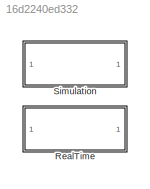
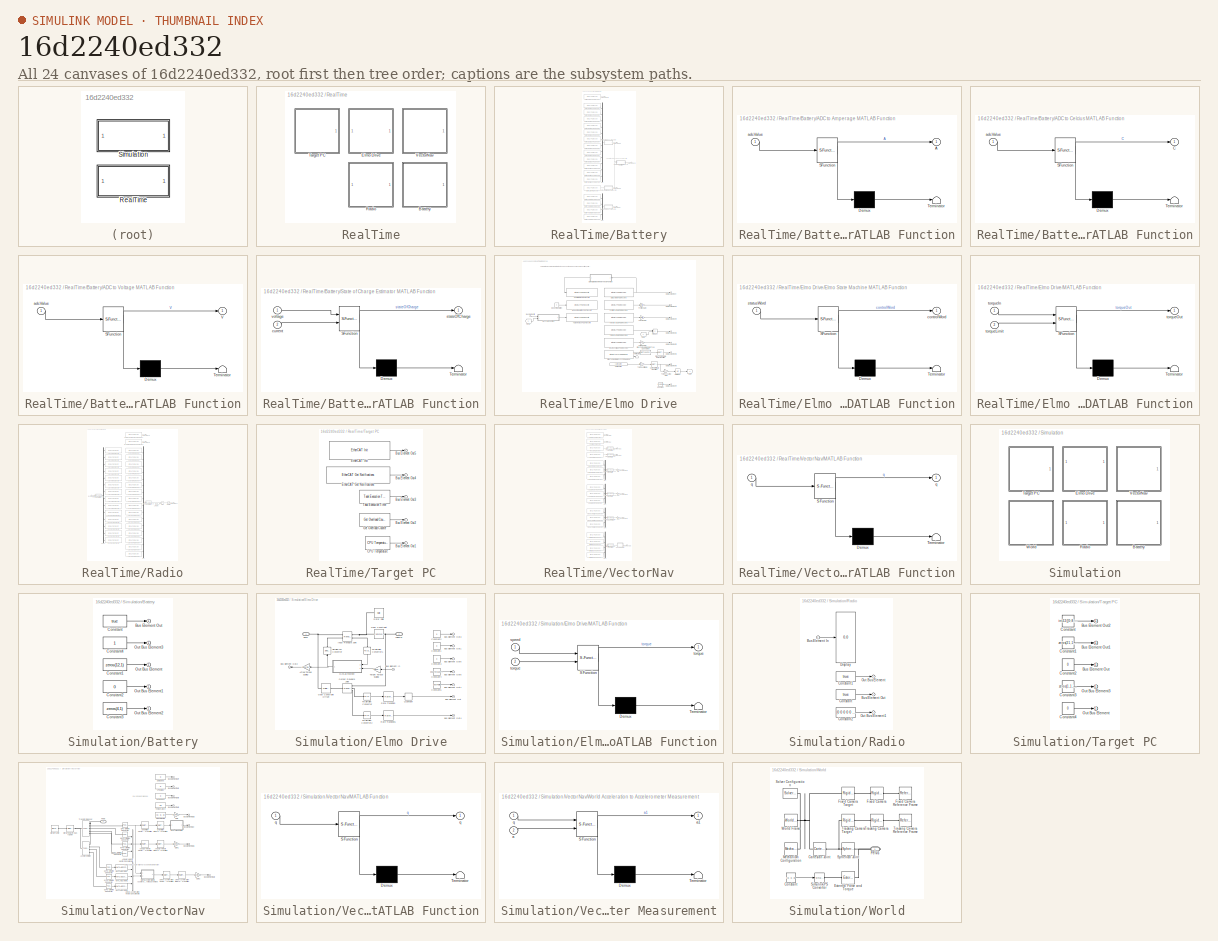
[diagram: thumbnail index - all 24 canvases of the model, root first then tree order]
MODEL slx_16d2240ed332
KIND library
CONFIG AbsTol = auto
CONFIG EnableMultiTasking = off
CONFIG FixedStep = auto
CONFIG MaxStep = auto
CONFIG MinStep = auto
CONFIG RelTol = 1e-3
CONFIG SampleTimeConstraint = Unconstrained
CONFIG Solver = VariableStepAuto
CONFIG SolverName = VariableStepAuto
CONFIG StartTime = 0.0
CONFIG StopTime = 10.0
BLOCK [SubSystem] RealTime
  Ports = []
  RequestExecContextInheritance = off
  Variant = off
BLOCK [SubSystem] RealTime/Battery
  Ports = [0, 1]
  RequestExecContextInheritance = off
  Variant = off
BLOCK [SubSystem] RealTime/Battery/ADC to Amperage MATLAB Function
  ErrorFcn = Stateflow.Translate.translate
  PermitHierarchicalResolution = ExplicitOnly
  Ports = [1, 1]
  RequestExecContextInheritance = off
  SFBlockType = MATLAB Function
  ShowPortLabels = none
  TreatAsAtomicUnit = on
  Variant = off
BLOCK [Demux] RealTime/Battery/ADC to Amperage MATLAB Function/ Demux 
  Outputs = 1
  Ports = [1, 1]
BLOCK [S-Function] RealTime/Battery/ADC to Amperage MATLAB Function/ SFunction 
  EnableBusSupport = off
  FunctionName = sf_sfun
  PortCounts = [1 2]
  Ports = [1, 2]
  SFcnIsStateOwnerBlock = off
  SFunctionDeploymentMode = off
  Tag = Stateflow S-Function ComponentLibrary 3
BLOCK [Terminator] RealTime/Battery/ADC to Amperage MATLAB Function/ Terminator 
BLOCK [Outport] RealTime/Battery/ADC to Amperage MATLAB Function/A
  IconDisplay = Port number
BLOCK [Inport] RealTime/Battery/ADC to Amperage MATLAB Function/adcValue
  IconDisplay = Port number
BLOCK [SubSystem] RealTime/Battery/ADC to Celcius MATLAB Function
  ErrorFcn = Stateflow.Translate.translate
  PermitHierarchicalResolution = ExplicitOnly
  Ports = [1, 1]
  RequestExecContextInheritance = off
  SFBlockType = MATLAB Function
  ShowPortLabels = none
  TreatAsAtomicUnit = on
  Variant = off
BLOCK [Demux] RealTime/Battery/ADC to Celcius MATLAB Function/ Demux 
  Outputs = 1
  Ports = [1, 1]
BLOCK [S-Function] RealTime/Battery/ADC to Celcius MATLAB Function/ SFunction 
  EnableBusSupport = off
  FunctionName = sf_sfun
  PortCounts = [1 2]
  Ports = [1, 2]
  SFcnIsStateOwnerBlock = off
  SFunctionDeploymentMode = off
  Tag = Stateflow S-Function ComponentLibrary 4
BLOCK [Terminator] RealTime/Battery/ADC to Celcius MATLAB Function/ Terminator 
BLOCK [Outport] RealTime/Battery/ADC to Celcius MATLAB Function/C
  IconDisplay = Port number
BLOCK [Inport] RealTime/Battery/ADC to Celcius MATLAB Function/adcValue
  IconDisplay = Port number
BLOCK [SubSystem] RealTime/Battery/ADC to Voltage MATLAB Function
  ErrorFcn = Stateflow.Translate.translate
  PermitHierarchicalResolution = ExplicitOnly
  Ports = [1, 1]
  RequestExecContextInheritance = off
  SFBlockType = MATLAB Function
  ShowPortLabels = none
  TreatAsAtomicUnit = on
  Variant = off
BLOCK [Demux] RealTime/Battery/ADC to Voltage MATLAB Function/ Demux 
  Outputs = 1
  Ports = [1, 1]
BLOCK [S-Function] RealTime/Battery/ADC to Voltage MATLAB Function/ SFunction 
  EnableBusSupport = off
  FunctionName = sf_sfun
  PortCounts = [1 2]
  Ports = [1, 2]
  SFcnIsStateOwnerBlock = off
  SFunctionDeploymentMode = off
  Tag = Stateflow S-Function ComponentLibrary 6
BLOCK [Terminator] RealTime/Battery/ADC to Voltage MATLAB Function/ Terminator 
BLOCK [Outport] RealTime/Battery/ADC to Voltage MATLAB Function/V
  IconDisplay = Port number
BLOCK [Inport] RealTime/Battery/ADC to Voltage MATLAB Function/adcValue
  IconDisplay = Port number
BLOCK [Reference] RealTime/Battery/Battery Cell Voltage 1 PDO Receive  REF=xpcethercatlib/EtherCAT PDO Receive
  Ports = [0, 1]
  Priority = 2
  SourceBlock = xpcethercatlib/EtherCAT PDO Receive
  SourceProductBaseCode = XP
  SourceProductName = Simulink Real-Time
  SourceType = xpcethercat_rx_var
BLOCK [Reference] RealTime/Battery/Battery Cell Voltage 10 PDO Receive  REF=xpcethercatlib/EtherCAT PDO Receive
  Ports = [0, 1]
  Priority = 2
  SourceBlock = xpcethercatlib/EtherCAT PDO Receive
  SourceProductBaseCode = XP
  SourceProductName = Simulink Real-Time
  SourceType = xpcethercat_rx_var
BLOCK [Reference] RealTime/Battery/Battery Cell Voltage 11 PDO Receive  REF=xpcethercatlib/EtherCAT PDO Receive
  Ports = [0, 1]
  Priority = 2
  SourceBlock = xpcethercatlib/EtherCAT PDO Receive
  SourceProductBaseCode = XP
  SourceProductName = Simulink Real-Time
  SourceType = xpcethercat_rx_var
BLOCK [Reference] RealTime/Battery/Battery Cell Voltage 12 PDO Receive  REF=xpcethercatlib/EtherCAT PDO Receive
  Ports = [0, 1]
  Priority = 2
  SourceBlock = xpcethercatlib/EtherCAT PDO Receive
  SourceProductBaseCode = XP
  SourceProductName = Simulink Real-Time
  SourceType = xpcethercat_rx_var
BLOCK [Reference] RealTime/Battery/Battery Cell Voltage 2 PDO Receive  REF=xpcethercatlib/EtherCAT PDO Receive
  Ports = [0, 1]
  Priority = 2
  SourceBlock = xpcethercatlib/EtherCAT PDO Receive
  SourceProductBaseCode = XP
  SourceProductName = Simulink Real-Time
  SourceType = xpcethercat_rx_var
BLOCK [Reference] RealTime/Battery/Battery Cell Voltage 3 PDO Receive  REF=xpcethercatlib/EtherCAT PDO Receive
  Ports = [0, 1]
  Priority = 2
  SourceBlock = xpcethercatlib/EtherCAT PDO Receive
  SourceProductBaseCode = XP
  SourceProductName = Simulink Real-Time
  SourceType = xpcethercat_rx_var
BLOCK [Reference] RealTime/Battery/Battery Cell Voltage 4 PDO Receive  REF=xpcethercatlib/EtherCAT PDO Receive
  Ports = [0, 1]
  Priority = 2
  SourceBlock = xpcethercatlib/EtherCAT PDO Receive
  SourceProductBaseCode = XP
  SourceProductName = Simulink Real-Time
  SourceType = xpcethercat_rx_var
BLOCK [Reference] RealTime/Battery/Battery Cell Voltage 5 PDO Receive  REF=xpcethercatlib/EtherCAT PDO Receive
  Ports = [0, 1]
  Priority = 2
  SourceBlock = xpcethercatlib/EtherCAT PDO Receive
  SourceProductBaseCode = XP
  SourceProductName = Simulink Real-Time
  SourceType = xpcethercat_rx_var
BLOCK [Reference] RealTime/Battery/Battery Cell Voltage 6 PDO Receive  REF=xpcethercatlib/EtherCAT PDO Receive
  Ports = [0, 1]
  Priority = 2
  SourceBlock = xpcethercatlib/EtherCAT PDO Receive
  SourceProductBaseCode = XP
  SourceProductName = Simulink Real-Time
  SourceType = xpcethercat_rx_var
BLOCK [Reference] RealTime/Battery/Battery Cell Voltage 7 PDO Receive  REF=xpcethercatlib/EtherCAT PDO Receive
  Ports = [0, 1]
  Priority = 2
  SourceBlock = xpcethercatlib/EtherCAT PDO Receive
  SourceProductBaseCode = XP
  SourceProductName = Simulink Real-Time
  SourceType = xpcethercat_rx_var
BLOCK [Reference] RealTime/Battery/Battery Cell Voltage 8 PDO Receive  REF=xpcethercatlib/EtherCAT PDO Receive
  Ports = [0, 1]
  Priority = 2
  SourceBlock = xpcethercatlib/EtherCAT PDO Receive
  SourceProductBaseCode = XP
  SourceProductName = Simulink Real-Time
  SourceType = xpcethercat_rx_var
BLOCK [Reference] RealTime/Battery/Battery Cell Voltage 9 PDO Receive  REF=xpcethercatlib/EtherCAT PDO Receive
  Ports = [0, 1]
  Priority = 2
  SourceBlock = xpcethercatlib/EtherCAT PDO Receive
  SourceProductBaseCode = XP
  SourceProductName = Simulink Real-Time
  SourceType = xpcethercat_rx_var
BLOCK [Reference] RealTime/Battery/Battery Current PDO Receive  REF=xpcethercatlib/EtherCAT PDO Receive
  Ports = [0, 1]
  Priority = 2
  SourceBlock = xpcethercatlib/EtherCAT PDO Receive
  SourceProductBaseCode = XP
  SourceProductName = Simulink Real-Time
  SourceType = xpcethercat_rx_var
BLOCK [Reference] RealTime/Battery/Battery Data Good PDO Receive  REF=xpcethercatlib/EtherCAT PDO Receive
  Ports = [0, 1]
  Priority = 2
  SourceBlock = xpcethercatlib/EtherCAT PDO Receive
  SourceProductBaseCode = XP
  SourceProductName = Simulink Real-Time
  SourceType = xpcethercat_rx_var
BLOCK [Reference] RealTime/Battery/Battery Temperature 1 PDO Receive  REF=xpcethercatlib/EtherCAT PDO Receive
  Ports = [0, 1]
  Priority = 2
  SourceBlock = xpcethercatlib/EtherCAT PDO Receive
  SourceProductBaseCode = XP
  SourceProductName = Simulink Real-Time
  SourceType = xpcethercat_rx_var
BLOCK [Reference] RealTime/Battery/Battery Temperature 2 PDO Receive  REF=xpcethercatlib/EtherCAT PDO Receive
  Ports = [0, 1]
  Priority = 2
  SourceBlock = xpcethercatlib/EtherCAT PDO Receive
  SourceProductBaseCode = XP
  SourceProductName = Simulink Real-Time
  SourceType = xpcethercat_rx_var
BLOCK [Reference] RealTime/Battery/Battery Temperature 3 PDO Receive  REF=xpcethercatlib/EtherCAT PDO Receive
  Ports = [0, 1]
  Priority = 2
  SourceBlock = xpcethercatlib/EtherCAT PDO Receive
  SourceProductBaseCode = XP
  SourceProductName = Simulink Real-Time
  SourceType = xpcethercat_rx_var
BLOCK [Reference] RealTime/Battery/Battery Temperature 4 PDO Receive  REF=xpcethercatlib/EtherCAT PDO Receive
  Ports = [0, 1]
  Priority = 2
  SourceBlock = xpcethercatlib/EtherCAT PDO Receive
  SourceProductBaseCode = XP
  SourceProductName = Simulink Real-Time
  SourceType = xpcethercat_rx_var
BLOCK [Mux] RealTime/Battery/Mux
  DisplayOption = bar
  Inputs = 12
  Ports = [12, 1]
BLOCK [Mux] RealTime/Battery/Mux1
  DisplayOption = bar
  Ports = [4, 1]
BLOCK [Outport] RealTime/Battery/Out Bus Element
  IconDisplay = Port number
BLOCK [Outport] RealTime/Battery/Out Bus Element1
  IconDisplay = Port number
BLOCK [Outport] RealTime/Battery/Out Bus Element2
  IconDisplay = Port number
BLOCK [Outport] RealTime/Battery/Out Bus Element3
  IconDisplay = Port number
BLOCK [Outport] RealTime/Battery/Out Bus Element4
  IconDisplay = Port number
BLOCK [SubSystem] RealTime/Battery/State of Charge Estimator MATLAB Function
  ErrorFcn = Stateflow.Translate.translate
  PermitHierarchicalResolution = ExplicitOnly
  Ports = [2, 1]
  RequestExecContextInheritance = off
  SFBlockType = MATLAB Function
  ShowPortLabels = none
  TreatAsAtomicUnit = on
  Variant = off
BLOCK [Demux] RealTime/Battery/State of Charge Estimator MATLAB Function/ Demux 
  Outputs = 1
  Ports = [1, 1]
BLOCK [S-Function] RealTime/Battery/State of Charge Estimator MATLAB Function/ SFunction 
  EnableBusSupport = off
  FunctionName = sf_sfun
  PortCounts = [2 2]
  Ports = [2, 2]
  SFcnIsStateOwnerBlock = off
  SFunctionDeploymentMode = off
  Tag = Stateflow S-Function ComponentLibrary 1
BLOCK [Terminator] RealTime/Battery/State of Charge Estimator MATLAB Function/ Terminator 
BLOCK [Inport] RealTime/Battery/State of Charge Estimator MATLAB Function/current
  IconDisplay = Port number
  Port = 2
BLOCK [Outport] RealTime/Battery/State of Charge Estimator MATLAB Function/stateOfCharge
  IconDisplay = Port number
BLOCK [Inport] RealTime/Battery/State of Charge Estimator MATLAB Function/voltage
  IconDisplay = Port number
BLOCK [SubSystem] RealTime/Elmo Drive
  Ports = [1, 1]
  RequestExecContextInheritance = off
  Variant = off
BLOCK [Inport] RealTime/Elmo Drive/Bus Element In
  IconDisplay = Port number
BLOCK [Constant] RealTime/Elmo Drive/Constant
  Value = gearRatio
BLOCK [Reference] RealTime/Elmo Drive/Control Word PDO Transmit  REF=xpcethercatlib/EtherCAT PDO Transmit 
  Ports = [1]
  Priority = 3
  SourceBlock = xpcethercatlib/EtherCAT PDO Transmit
  SourceProductBaseCode = XP
  SourceProductName = Simulink Real-Time
  SourceType = xpcethercat_tx_var
BLOCK [Constant] RealTime/Elmo Drive/Current Limit
  Value = currentLimit
BLOCK [RateTransition] RealTime/Elmo Drive/Current Limit Rate Transition
BLOCK [Reference] RealTime/Elmo Drive/DC Link Voltage PDO Receive  REF=xpcethercatlib/EtherCAT PDO Receive
  Ports = [0, 1]
  Priority = 2
  SourceBlock = xpcethercatlib/EtherCAT PDO Receive
  SourceProductBaseCode = XP
  SourceProductName = Simulink Real-Time
  SourceType = xpcethercat_rx_var
BLOCK [DataTypeConversion] RealTime/Elmo Drive/Drive Temperature Data Type Conversion
  OutDataTypeStr = double
  RndMeth = Floor
  SaturateOnIntegerOverflow = off
BLOCK [RateTransition] RealTime/Elmo Drive/Drive Temperature Rate Transition
BLOCK [Reference] RealTime/Elmo Drive/Drive Temperature Sync SDO Upload  REF=xpcethercatlib/EtherCAT Sync SDO Upload
  Ports = [0, 2]
  SourceBlock = xpcethercatlib/EtherCAT Sync SDO Upload
  SourceProductBaseCode = XP
  SourceProductName = Simulink Real-Time
  SourceType = xpcethercatcoeread
BLOCK [SubSystem] RealTime/Elmo Drive/Elmo State Machine MATLAB Function
  ErrorFcn = Stateflow.Translate.translate
  PermitHierarchicalResolution = ExplicitOnly
  Ports = [1, 1]
  RequestExecContextInheritance = off
  SFBlockType = MATLAB Function
  TreatAsAtomicUnit = on
  Variant = off
BLOCK [Demux] RealTime/Elmo Drive/Elmo State Machine MATLAB Function/ Demux 
  Outputs = 1
  Ports = [1, 1]
BLOCK [S-Function] RealTime/Elmo Drive/Elmo State Machine MATLAB Function/ SFunction 
  EnableBusSupport = off
  FunctionName = sf_sfun
  PortCounts = [1 2]
  Ports = [1, 2]
  SFcnIsStateOwnerBlock = off
  SFunctionDeploymentMode = off
  Tag = Stateflow S-Function ComponentLibrary 5
BLOCK [Terminator] RealTime/Elmo Drive/Elmo State Machine MATLAB Function/ Terminator 
BLOCK [Outport] RealTime/Elmo Drive/Elmo State Machine MATLAB Function/controlWord
  IconDisplay = Port number
BLOCK [Inport] RealTime/Elmo Drive/Elmo State Machine MATLAB Function/statusWord
  IconDisplay = Port number
BLOCK [From] RealTime/Elmo Drive/From
BLOCK [From] RealTime/Elmo Drive/From1
BLOCK [Goto] RealTime/Elmo Drive/Goto
BLOCK [SubSystem] RealTime/Elmo Drive/MATLAB Function
  ErrorFcn = Stateflow.Translate.translate
  PermitHierarchicalResolution = ExplicitOnly
  Ports = [2, 1]
  RequestExecContextInheritance = off
  SFBlockType = MATLAB Function
  TreatAsAtomicUnit = on
  Variant = off
BLOCK [Demux] RealTime/Elmo Drive/MATLAB Function/ Demux 
  Outputs = 1
  Ports = [1, 1]
BLOCK [S-Function] RealTime/Elmo Drive/MATLAB Function/ SFunction 
  EnableBusSupport = off
  FunctionName = sf_sfun
  PortCounts = [2 2]
  Ports = [2, 2]
  SFcnIsStateOwnerBlock = off
  SFunctionDeploymentMode = off
  Tag = Stateflow S-Function ComponentLibrary 9
BLOCK [Terminator] RealTime/Elmo Drive/MATLAB Function/ Terminator 
BLOCK [Inport] RealTime/Elmo Drive/MATLAB Function/torqueIn
  IconDisplay = Port number
BLOCK [Inport] RealTime/Elmo Drive/MATLAB Function/torqueLimit
  IconDisplay = Port number
  Port = 2
BLOCK [Outport] RealTime/Elmo Drive/MATLAB Function/torqueOut
  IconDisplay = Port number
BLOCK [Constant] RealTime/Elmo Drive/Mode of Operation
  OutDataTypeStr = int8
  Value = 4
BLOCK [Reference] RealTime/Elmo Drive/Mode of Operation PDO Transmit  REF=xpcethercatlib/EtherCAT PDO Transmit 
  Ports = [1]
  Priority = 3
  SourceBlock = xpcethercatlib/EtherCAT PDO Transmit
  SourceProductBaseCode = XP
  SourceProductName = Simulink Real-Time
  SourceType = xpcethercat_tx_var
BLOCK [Outport] RealTime/Elmo Drive/Out Bus Element
  IconDisplay = Port number
BLOCK [Outport] RealTime/Elmo Drive/Out Bus Element1
  IconDisplay = Port number
BLOCK [Outport] RealTime/Elmo Drive/Out Bus Element2
  IconDisplay = Port number
BLOCK [Outport] RealTime/Elmo Drive/Out Bus Element3
  IconDisplay = Port number
BLOCK [Outport] RealTime/Elmo Drive/Out Bus Element4
  IconDisplay = Port number
BLOCK [Outport] RealTime/Elmo Drive/Out Bus Element5
  IconDisplay = Port number
BLOCK [Outport] RealTime/Elmo Drive/Out Bus Element6
  IconDisplay = Port number
BLOCK [Outport] RealTime/Elmo Drive/Out Bus Element7
  IconDisplay = Port number
BLOCK [Reference] RealTime/Elmo Drive/Position Actual PDO Receive  REF=xpcethercatlib/EtherCAT PDO Receive
  Ports = [0, 1]
  Priority = 2
  SourceBlock = xpcethercatlib/EtherCAT PDO Receive
  SourceProductBaseCode = XP
  SourceProductName = Simulink Real-Time
  SourceType = xpcethercat_rx_var
BLOCK [Gain] RealTime/Elmo Drive/Position Gain
  Gain = 2*pi/(encoderCounts*gearRatio)
  OutDataTypeStr = double
  ParamDataTypeStr = double
  SaturateOnIntegerOverflow = off
BLOCK [Product] RealTime/Elmo Drive/Product
  InputSameDT = off
  OutDataTypeStr = double
  Ports = [2, 1]
  RndMeth = Floor
  SaturateOnIntegerOverflow = off
BLOCK [Reference] RealTime/Elmo Drive/Status Word PDO Receive  REF=xpcethercatlib/EtherCAT PDO Receive
  Ports = [0, 1]
  Priority = 2
  SourceBlock = xpcethercatlib/EtherCAT PDO Receive
  SourceProductBaseCode = XP
  SourceProductName = Simulink Real-Time
  SourceType = xpcethercat_rx_var
BLOCK [Reference] RealTime/Elmo Drive/Target Torque PDO Transmit  REF=xpcethercatlib/EtherCAT PDO Transmit 
  Ports = [1]
  Priority = 3
  SourceBlock = xpcethercatlib/EtherCAT PDO Transmit
  SourceProductBaseCode = XP
  SourceProductName = Simulink Real-Time
  SourceType = xpcethercat_tx_var
BLOCK [Terminator] RealTime/Elmo Drive/Terminator1
BLOCK [Reference] RealTime/Elmo Drive/Torque Actual PDO Receive  REF=xpcethercatlib/EtherCAT PDO Receive
  Ports = [0, 1]
  Priority = 2
  SourceBlock = xpcethercatlib/EtherCAT PDO Receive
  SourceProductBaseCode = XP
  SourceProductName = Simulink Real-Time
  SourceType = xpcethercat_rx_var
BLOCK [Gain] RealTime/Elmo Drive/Torque Limit Gain
  Gain = torqueConstant*gearRatio
  OutDataTypeStr = double
  ParamDataTypeStr = Inherit: Inherit via internal rule
  SaturateOnIntegerOverflow = off
BLOCK [Gain] RealTime/Elmo Drive/Torque Scaling Gain
  Gain = 1/1000
  OutDataTypeStr = double
  ParamDataTypeStr = double
  SaturateOnIntegerOverflow = off
BLOCK [UnitDelay] RealTime/Elmo Drive/Unit Delay
  InitialCondition = 1
  InputProcessing = Elements as channels (sample based)
  SampleTime = -1
BLOCK [Reference] RealTime/Elmo Drive/Velocity Actual PDO Receive  REF=xpcethercatlib/EtherCAT PDO Receive
  Ports = [0, 1]
  Priority = 2
  SourceBlock = xpcethercatlib/EtherCAT PDO Receive
  SourceProductBaseCode = XP
  SourceProductName = Simulink Real-Time
  SourceType = xpcethercat_rx_var
BLOCK [Gain] RealTime/Elmo Drive/Velocity Gain
  Gain = 2*pi/(encoderCounts*gearRatio)
  OutDataTypeStr = double
  ParamDataTypeStr = double
  SaturateOnIntegerOverflow = off
BLOCK [Gain] RealTime/Elmo Drive/Voltage Gain
  Gain = 1/1000
  OutDataTypeStr = double
  ParamDataTypeStr = double
  SaturateOnIntegerOverflow = off
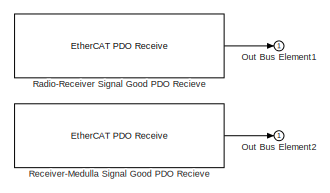
[diagram: RealTime/Radio - part 1/3, top center region]
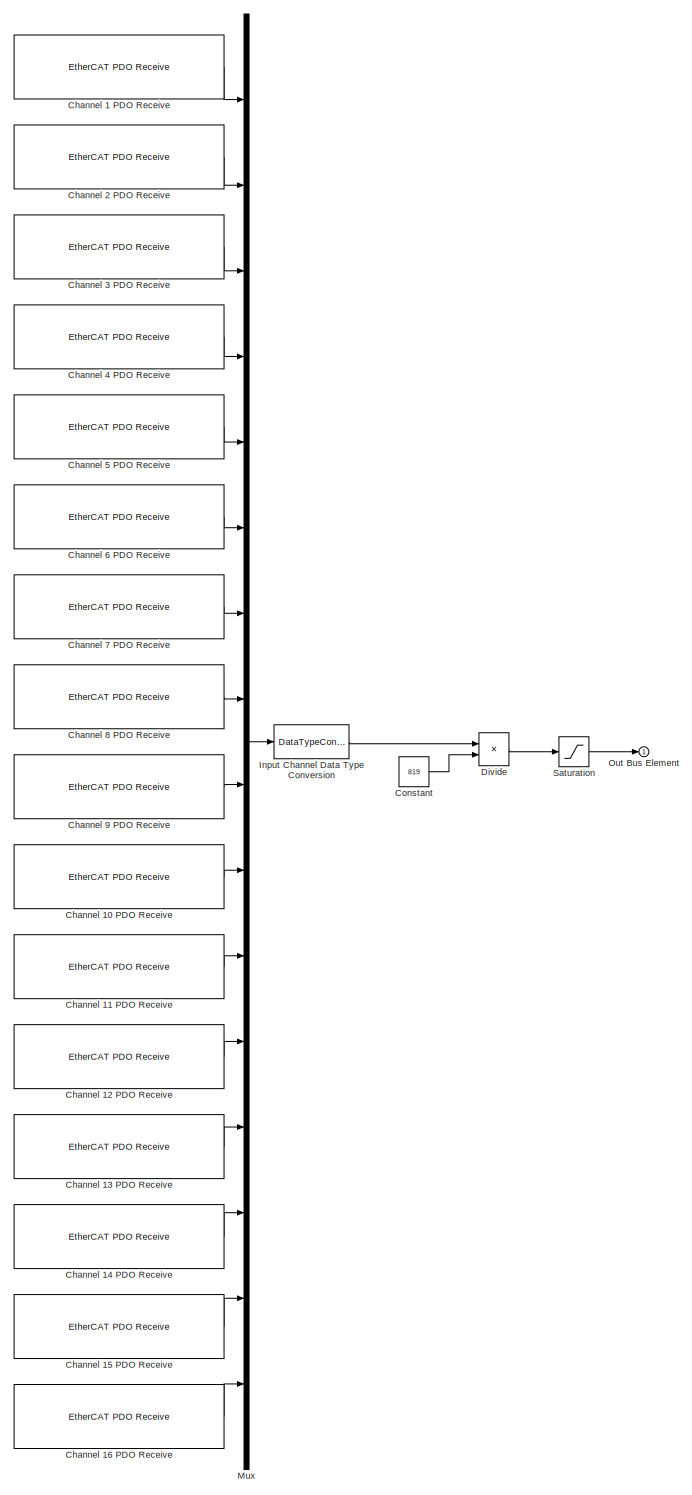
[diagram: RealTime/Radio - part 2/3, right side, full height]
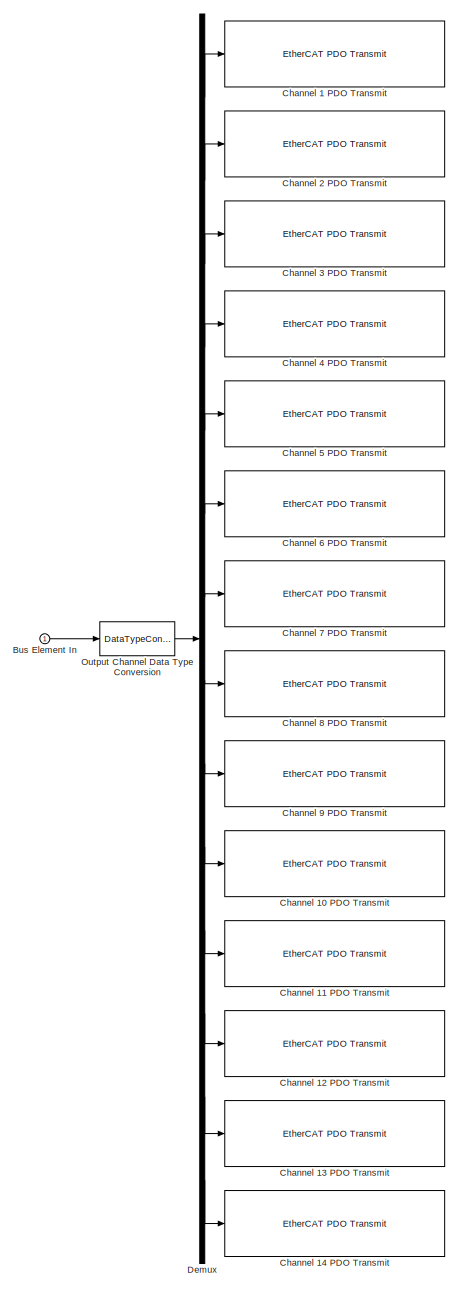
[diagram: RealTime/Radio - part 3/3, left side, full height]
BLOCK [SubSystem] RealTime/Radio
  Ports = [1, 1]
  RequestExecContextInheritance = off
  Variant = off
BLOCK [Inport] RealTime/Radio/Bus Element In
  IconDisplay = Port number
BLOCK [Reference] RealTime/Radio/Channel 1 PDO Receive  REF=xpcethercatlib/EtherCAT PDO Receive
  Ports = [0, 1]
  Priority = 2
  SourceBlock = xpcethercatlib/EtherCAT PDO Receive
  SourceProductBaseCode = XP
  SourceProductName = Simulink Real-Time
  SourceType = xpcethercat_rx_var
BLOCK [Reference] RealTime/Radio/Channel 1 PDO Transmit  REF=xpcethercatlib/EtherCAT PDO Transmit 
  Ports = [1]
  Priority = 3
  SourceBlock = xpcethercatlib/EtherCAT PDO Transmit
  SourceProductBaseCode = XP
  SourceProductName = Simulink Real-Time
  SourceType = xpcethercat_tx_var
BLOCK [Reference] RealTime/Radio/Channel 10 PDO Receive  REF=xpcethercatlib/EtherCAT PDO Receive
  Ports = [0, 1]
  Priority = 2
  SourceBlock = xpcethercatlib/EtherCAT PDO Receive
  SourceProductBaseCode = XP
  SourceProductName = Simulink Real-Time
  SourceType = xpcethercat_rx_var
BLOCK [Reference] RealTime/Radio/Channel 10 PDO Transmit  REF=xpcethercatlib/EtherCAT PDO Transmit 
  Ports = [1]
  Priority = 3
  SourceBlock = xpcethercatlib/EtherCAT PDO Transmit
  SourceProductBaseCode = XP
  SourceProductName = Simulink Real-Time
  SourceType = xpcethercat_tx_var
BLOCK [Reference] RealTime/Radio/Channel 11 PDO Receive  REF=xpcethercatlib/EtherCAT PDO Receive
  Ports = [0, 1]
  Priority = 2
  SourceBlock = xpcethercatlib/EtherCAT PDO Receive
  SourceProductBaseCode = XP
  SourceProductName = Simulink Real-Time
  SourceType = xpcethercat_rx_var
BLOCK [Reference] RealTime/Radio/Channel 11 PDO Transmit  REF=xpcethercatlib/EtherCAT PDO Transmit 
  Ports = [1]
  Priority = 3
  SourceBlock = xpcethercatlib/EtherCAT PDO Transmit
  SourceProductBaseCode = XP
  SourceProductName = Simulink Real-Time
  SourceType = xpcethercat_tx_var
BLOCK [Reference] RealTime/Radio/Channel 12 PDO Receive  REF=xpcethercatlib/EtherCAT PDO Receive
  Ports = [0, 1]
  Priority = 2
  SourceBlock = xpcethercatlib/EtherCAT PDO Receive
  SourceProductBaseCode = XP
  SourceProductName = Simulink Real-Time
  SourceType = xpcethercat_rx_var
BLOCK [Reference] RealTime/Radio/Channel 12 PDO Transmit  REF=xpcethercatlib/EtherCAT PDO Transmit 
  Ports = [1]
  Priority = 3
  SourceBlock = xpcethercatlib/EtherCAT PDO Transmit
  SourceProductBaseCode = XP
  SourceProductName = Simulink Real-Time
  SourceType = xpcethercat_tx_var
BLOCK [Reference] RealTime/Radio/Channel 13 PDO Receive  REF=xpcethercatlib/EtherCAT PDO Receive
  Ports = [0, 1]
  Priority = 2
  SourceBlock = xpcethercatlib/EtherCAT PDO Receive
  SourceProductBaseCode = XP
  SourceProductName = Simulink Real-Time
  SourceType = xpcethercat_rx_var
BLOCK [Reference] RealTime/Radio/Channel 13 PDO Transmit  REF=xpcethercatlib/EtherCAT PDO Transmit 
  Ports = [1]
  Priority = 3
  SourceBlock = xpcethercatlib/EtherCAT PDO Transmit
  SourceProductBaseCode = XP
  SourceProductName = Simulink Real-Time
  SourceType = xpcethercat_tx_var
BLOCK [Reference] RealTime/Radio/Channel 14 PDO Receive  REF=xpcethercatlib/EtherCAT PDO Receive
  Ports = [0, 1]
  Priority = 2
  SourceBlock = xpcethercatlib/EtherCAT PDO Receive
  SourceProductBaseCode = XP
  SourceProductName = Simulink Real-Time
  SourceType = xpcethercat_rx_var
BLOCK [Reference] RealTime/Radio/Channel 14 PDO Transmit  REF=xpcethercatlib/EtherCAT PDO Transmit 
  Ports = [1]
  Priority = 3
  SourceBlock = xpcethercatlib/EtherCAT PDO Transmit
  SourceProductBaseCode = XP
  SourceProductName = Simulink Real-Time
  SourceType = xpcethercat_tx_var
BLOCK [Reference] RealTime/Radio/Channel 15 PDO Receive  REF=xpcethercatlib/EtherCAT PDO Receive
  Ports = [0, 1]
  Priority = 2
  SourceBlock = xpcethercatlib/EtherCAT PDO Receive
  SourceProductBaseCode = XP
  SourceProductName = Simulink Real-Time
  SourceType = xpcethercat_rx_var
BLOCK [Reference] RealTime/Radio/Channel 16 PDO Receive  REF=xpcethercatlib/EtherCAT PDO Receive
  Ports = [0, 1]
  Priority = 2
  SourceBlock = xpcethercatlib/EtherCAT PDO Receive
  SourceProductBaseCode = XP
  SourceProductName = Simulink Real-Time
  SourceType = xpcethercat_rx_var
BLOCK [Reference] RealTime/Radio/Channel 2 PDO Receive  REF=xpcethercatlib/EtherCAT PDO Receive
  Ports = [0, 1]
  Priority = 2
  SourceBlock = xpcethercatlib/EtherCAT PDO Receive
  SourceProductBaseCode = XP
  SourceProductName = Simulink Real-Time
  SourceType = xpcethercat_rx_var
BLOCK [Reference] RealTime/Radio/Channel 2 PDO Transmit  REF=xpcethercatlib/EtherCAT PDO Transmit 
  Ports = [1]
  Priority = 3
  SourceBlock = xpcethercatlib/EtherCAT PDO Transmit
  SourceProductBaseCode = XP
  SourceProductName = Simulink Real-Time
  SourceType = xpcethercat_tx_var
BLOCK [Reference] RealTime/Radio/Channel 3 PDO Receive  REF=xpcethercatlib/EtherCAT PDO Receive
  Ports = [0, 1]
  Priority = 2
  SourceBlock = xpcethercatlib/EtherCAT PDO Receive
  SourceProductBaseCode = XP
  SourceProductName = Simulink Real-Time
  SourceType = xpcethercat_rx_var
BLOCK [Reference] RealTime/Radio/Channel 3 PDO Transmit  REF=xpcethercatlib/EtherCAT PDO Transmit 
  Ports = [1]
  Priority = 3
  SourceBlock = xpcethercatlib/EtherCAT PDO Transmit
  SourceProductBaseCode = XP
  SourceProductName = Simulink Real-Time
  SourceType = xpcethercat_tx_var
BLOCK [Reference] RealTime/Radio/Channel 4 PDO Receive  REF=xpcethercatlib/EtherCAT PDO Receive
  Ports = [0, 1]
  Priority = 2
  SourceBlock = xpcethercatlib/EtherCAT PDO Receive
  SourceProductBaseCode = XP
  SourceProductName = Simulink Real-Time
  SourceType = xpcethercat_rx_var
BLOCK [Reference] RealTime/Radio/Channel 4 PDO Transmit  REF=xpcethercatlib/EtherCAT PDO Transmit 
  Ports = [1]
  Priority = 3
  SourceBlock = xpcethercatlib/EtherCAT PDO Transmit
  SourceProductBaseCode = XP
  SourceProductName = Simulink Real-Time
  SourceType = xpcethercat_tx_var
BLOCK [Reference] RealTime/Radio/Channel 5 PDO Receive  REF=xpcethercatlib/EtherCAT PDO Receive
  Ports = [0, 1]
  Priority = 2
  SourceBlock = xpcethercatlib/EtherCAT PDO Receive
  SourceProductBaseCode = XP
  SourceProductName = Simulink Real-Time
  SourceType = xpcethercat_rx_var
BLOCK [Reference] RealTime/Radio/Channel 5 PDO Transmit  REF=xpcethercatlib/EtherCAT PDO Transmit 
  Ports = [1]
  Priority = 3
  SourceBlock = xpcethercatlib/EtherCAT PDO Transmit
  SourceProductBaseCode = XP
  SourceProductName = Simulink Real-Time
  SourceType = xpcethercat_tx_var
BLOCK [Reference] RealTime/Radio/Channel 6 PDO Receive  REF=xpcethercatlib/EtherCAT PDO Receive
  Ports = [0, 1]
  Priority = 2
  SourceBlock = xpcethercatlib/EtherCAT PDO Receive
  SourceProductBaseCode = XP
  SourceProductName = Simulink Real-Time
  SourceType = xpcethercat_rx_var
BLOCK [Reference] RealTime/Radio/Channel 6 PDO Transmit  REF=xpcethercatlib/EtherCAT PDO Transmit 
  Ports = [1]
  Priority = 3
  SourceBlock = xpcethercatlib/EtherCAT PDO Transmit
  SourceProductBaseCode = XP
  SourceProductName = Simulink Real-Time
  SourceType = xpcethercat_tx_var
BLOCK [Reference] RealTime/Radio/Channel 7 PDO Receive  REF=xpcethercatlib/EtherCAT PDO Receive
  Ports = [0, 1]
  Priority = 2
  SourceBlock = xpcethercatlib/EtherCAT PDO Receive
  SourceProductBaseCode = XP
  SourceProductName = Simulink Real-Time
  SourceType = xpcethercat_rx_var
BLOCK [Reference] RealTime/Radio/Channel 7 PDO Transmit  REF=xpcethercatlib/EtherCAT PDO Transmit 
  Ports = [1]
  Priority = 3
  SourceBlock = xpcethercatlib/EtherCAT PDO Transmit
  SourceProductBaseCode = XP
  SourceProductName = Simulink Real-Time
  SourceType = xpcethercat_tx_var
BLOCK [Reference] RealTime/Radio/Channel 8 PDO Receive  REF=xpcethercatlib/EtherCAT PDO Receive
  Ports = [0, 1]
  Priority = 2
  SourceBlock = xpcethercatlib/EtherCAT PDO Receive
  SourceProductBaseCode = XP
  SourceProductName = Simulink Real-Time
  SourceType = xpcethercat_rx_var
BLOCK [Reference] RealTime/Radio/Channel 8 PDO Transmit  REF=xpcethercatlib/EtherCAT PDO Transmit 
  Ports = [1]
  Priority = 3
  SourceBlock = xpcethercatlib/EtherCAT PDO Transmit
  SourceProductBaseCode = XP
  SourceProductName = Simulink Real-Time
  SourceType = xpcethercat_tx_var
BLOCK [Reference] RealTime/Radio/Channel 9 PDO Receive  REF=xpcethercatlib/EtherCAT PDO Receive
  Ports = [0, 1]
  Priority = 2
  SourceBlock = xpcethercatlib/EtherCAT PDO Receive
  SourceProductBaseCode = XP
  SourceProductName = Simulink Real-Time
  SourceType = xpcethercat_rx_var
BLOCK [Reference] RealTime/Radio/Channel 9 PDO Transmit  REF=xpcethercatlib/EtherCAT PDO Transmit 
  Ports = [1]
  Priority = 3
  SourceBlock = xpcethercatlib/EtherCAT PDO Transmit
  SourceProductBaseCode = XP
  SourceProductName = Simulink Real-Time
  SourceType = xpcethercat_tx_var
BLOCK [Constant] RealTime/Radio/Constant
  Value = 819
BLOCK [Demux] RealTime/Radio/Demux
  DisplayOption = bar
  Outputs = 14
  Ports = [1, 14]
BLOCK [Product] RealTime/Radio/Divide
  InputSameDT = off
  Inputs = */
  OutDataTypeStr = Inherit: Inherit via internal rule
  Ports = [2, 1]
  RndMeth = Floor
  SaturateOnIntegerOverflow = off
BLOCK [DataTypeConversion] RealTime/Radio/Input Channel Data Type Conversion
  OutDataTypeStr = double
  RndMeth = Floor
  SaturateOnIntegerOverflow = off
BLOCK [Mux] RealTime/Radio/Mux
  DisplayOption = bar
  Inputs = 16
  Ports = [16, 1]
BLOCK [Outport] RealTime/Radio/Out Bus Element
  IconDisplay = Port number
BLOCK [Outport] RealTime/Radio/Out Bus Element1
  IconDisplay = Port number
BLOCK [Outport] RealTime/Radio/Out Bus Element2
  IconDisplay = Port number
BLOCK [DataTypeConversion] RealTime/Radio/Output Channel Data Type Conversion
  OutDataTypeStr = int16
  RndMeth = Floor
  SaturateOnIntegerOverflow = off
BLOCK [Reference] RealTime/Radio/Radio-Receiver Signal Good PDO Recieve  REF=xpcethercatlib/EtherCAT PDO Receive
  Ports = [0, 1]
  Priority = 2
  SourceBlock = xpcethercatlib/EtherCAT PDO Receive
  SourceProductBaseCode = XP
  SourceProductName = Simulink Real-Time
  SourceType = xpcethercat_rx_var
BLOCK [Reference] RealTime/Radio/Receiver-Medulla Signal Good PDO Recieve  REF=xpcethercatlib/EtherCAT PDO Receive
  Ports = [0, 1]
  Priority = 2
  SourceBlock = xpcethercatlib/EtherCAT PDO Receive
  SourceProductBaseCode = XP
  SourceProductName = Simulink Real-Time
  SourceType = xpcethercat_rx_var
BLOCK [Saturate] RealTime/Radio/Saturation
  InputPortMap = u0
  LowerLimit = -1
  Ports = [1, 1]
  UpperLimit = 1
BLOCK [SubSystem] RealTime/Target PC
  Ports = [0, 1]
  RequestExecContextInheritance = off
  Variant = off
BLOCK [Outport] RealTime/Target PC/Bus Element Out1
  IconDisplay = Port number
BLOCK [Outport] RealTime/Target PC/Bus Element Out2
  IconDisplay = Port number
BLOCK [Outport] RealTime/Target PC/Bus Element Out3
  IconDisplay = Port number
BLOCK [Outport] RealTime/Target PC/Bus Element Out4
  IconDisplay = Port number
BLOCK [Outport] RealTime/Target PC/Bus Element Out5
  IconDisplay = Port number
BLOCK [Reference] RealTime/Target PC/CPU Temperature  REF=slrtlib/Target
Management/Target
Information/CPU Temperature
  Ports = [0, 1]
  SourceBlock = slrtlib/Target\nManagement/Target\nInformation/CPU Temperature
  SourceProductBaseCode = XP
  SourceProductName = Simulink Real-Time
  SourceType = SLRTCPUTemperature
BLOCK [Reference] RealTime/Target PC/EtherCAT Get Notifications  REF=xpcethercatlib/EtherCAT Get Notifications 
  Ports = [0, 1]
  SourceBlock = xpcethercatlib/EtherCAT Get Notifications
  SourceProductBaseCode = XP
  SourceProductName = Simulink Real-Time
  SourceType = xpcethercatgetnotify
BLOCK [Reference] RealTime/Target PC/EtherCAT Init  REF=xpcethercatlib/EtherCAT Init 
  Ports = [0, 1]
  Priority = 0
  SourceBlock = xpcethercatlib/EtherCAT Init
  SourceProductBaseCode = XP
  SourceProductName = Simulink Real-Time
  SourceType = xpcethercatinit
BLOCK [Reference] RealTime/Target PC/Get Overload Counter  REF=slrtlib/Target
Management/Execution
Parameters/Get Overload
Counter 
  Ports = [0, 1]
  SourceBlock = slrtlib/Target\nManagement/Execution\nParameters/Get Overload\nCounter
  SourceProductBaseCode = XP
  SourceProductName = Simulink Real-Time
  SourceType = xpcgetoverload
BLOCK [Reference] RealTime/Target PC/Task Execution Time   REF=slrtlib/Target
Management/Execution
Parameters/Task Execution
Time 
  Ports = [0, 1]
  SourceBlock = slrtlib/Target\nManagement/Execution\nParameters/Task Execution\nTime
  SourceProductBaseCode = XP
  SourceProductName = Simulink Real-Time
  SourceType = xpctet
BLOCK [SubSystem] RealTime/VectorNav
  Ports = [0, 1]
  RequestExecContextInheritance = off
  Variant = off
BLOCK [DataTypeConversion] RealTime/VectorNav/Angular Velocity Data Type Conversion
  OutDataTypeStr = double
  RndMeth = Floor
  SaturateOnIntegerOverflow = off
BLOCK [Reference] RealTime/VectorNav/Angular Velocity X PDO Receive  REF=xpcethercatlib/EtherCAT PDO Receive
  Ports = [0, 1]
  Priority = 2
  SourceBlock = xpcethercatlib/EtherCAT PDO Receive
  SourceProductBaseCode = XP
  SourceProductName = Simulink Real-Time
  SourceType = xpcethercat_rx_var
BLOCK [Reference] RealTime/VectorNav/Angular Velocity Y PDO Receive  REF=xpcethercatlib/EtherCAT PDO Receive
  Ports = [0, 1]
  Priority = 2
  SourceBlock = xpcethercatlib/EtherCAT PDO Receive
  SourceProductBaseCode = XP
  SourceProductName = Simulink Real-Time
  SourceType = xpcethercat_rx_var
BLOCK [Reference] RealTime/VectorNav/Angular Velocity Z PDO Receive  REF=xpcethercatlib/EtherCAT PDO Receive
  Ports = [0, 1]
  Priority = 2
  SourceBlock = xpcethercatlib/EtherCAT PDO Receive
  SourceProductBaseCode = XP
  SourceProductName = Simulink Real-Time
  SourceType = xpcethercat_rx_var
BLOCK [Outport] RealTime/VectorNav/Bus Element Out
  IconDisplay = Port number
BLOCK [Outport] RealTime/VectorNav/Bus Element Out1
  IconDisplay = Port number
BLOCK [Outport] RealTime/VectorNav/Bus Element Out2
  IconDisplay = Port number
BLOCK [Outport] RealTime/VectorNav/Bus Element Out3
  IconDisplay = Port number
BLOCK [Outport] RealTime/VectorNav/Bus Element Out4
  IconDisplay = Port number
BLOCK [Outport] RealTime/VectorNav/Bus Element Out5
  IconDisplay = Port number
BLOCK [Outport] RealTime/VectorNav/Bus Element Out6
  IconDisplay = Port number
BLOCK [Outport] RealTime/VectorNav/Bus Element Out7
  IconDisplay = Port number
BLOCK [Reference] RealTime/VectorNav/Data Good PDO Receive  REF=xpcethercatlib/EtherCAT PDO Receive
  Ports = [0, 1]
  Priority = 2
  SourceBlock = xpcethercatlib/EtherCAT PDO Receive
  SourceProductBaseCode = XP
  SourceProductName = Simulink Real-Time
  SourceType = xpcethercat_rx_var
BLOCK [Gain] RealTime/VectorNav/Gain
  Gain = postRotationMatrix
  Multiplication = Matrix(K*u)
  OutDataTypeStr = Inherit: Inherit via internal rule
  ParamDataTypeStr = Inherit: Inherit via internal rule
  SaturateOnIntegerOverflow = off
BLOCK [Gain] RealTime/VectorNav/Gain1
  Gain = postRotationMatrix
  Multiplication = Matrix(K*u)
  OutDataTypeStr = Inherit: Inherit via internal rule
  ParamDataTypeStr = Inherit: Inherit via internal rule
  SaturateOnIntegerOverflow = off
BLOCK [Gain] RealTime/VectorNav/Gain2
  Gain = postRotationMatrix
  Multiplication = Matrix(K*u)
  OutDataTypeStr = Inherit: Inherit via internal rule
  ParamDataTypeStr = Inherit: Inherit via internal rule
  SaturateOnIntegerOverflow = off
BLOCK [DataTypeConversion] RealTime/VectorNav/Linear Acceleration Data Type Conversion
  OutDataTypeStr = double
  RndMeth = Floor
  SaturateOnIntegerOverflow = off
BLOCK [Reference] RealTime/VectorNav/Linear Acceleration X PDO Receive  REF=xpcethercatlib/EtherCAT PDO Receive
  Ports = [0, 1]
  Priority = 2
  SourceBlock = xpcethercatlib/EtherCAT PDO Receive
  SourceProductBaseCode = XP
  SourceProductName = Simulink Real-Time
  SourceType = xpcethercat_rx_var
BLOCK [Reference] RealTime/VectorNav/Linear Acceleration Y PDO Receive  REF=xpcethercatlib/EtherCAT PDO Receive
  Ports = [0, 1]
  Priority = 2
  SourceBlock = xpcethercatlib/EtherCAT PDO Receive
  SourceProductBaseCode = XP
  SourceProductName = Simulink Real-Time
  SourceType = xpcethercat_rx_var
BLOCK [Reference] RealTime/VectorNav/Linear Acceleration Z PDO Receive  REF=xpcethercatlib/EtherCAT PDO Receive
  Ports = [0, 1]
  Priority = 2
  SourceBlock = xpcethercatlib/EtherCAT PDO Receive
  SourceProductBaseCode = XP
  SourceProductName = Simulink Real-Time
  SourceType = xpcethercat_rx_var
BLOCK [SubSystem] RealTime/VectorNav/MATLAB Function
  ErrorFcn = Stateflow.Translate.translate
  PermitHierarchicalResolution = ExplicitOnly
  Ports = [1, 1]
  RequestExecContextInheritance = off
  SFBlockType = MATLAB Function
  TreatAsAtomicUnit = on
  Variant = off
BLOCK [Demux] RealTime/VectorNav/MATLAB Function/ Demux 
  Outputs = 1
  Ports = [1, 1]
BLOCK [S-Function] RealTime/VectorNav/MATLAB Function/ SFunction 
  EnableBusSupport = off
  FunctionName = sf_sfun
  Parameters = postRotationMatrix,preRotationMatrix
  PortCounts = [1 2]
  Ports = [1, 2]
  SFcnIsStateOwnerBlock = off
  SFunctionDeploymentMode = off
  Tag = Stateflow S-Function ComponentLibrary 8
BLOCK [Terminator] RealTime/VectorNav/MATLAB Function/ Terminator 
BLOCK [Outport] RealTime/VectorNav/MATLAB Function/q
  IconDisplay = Port number
BLOCK [Inport] RealTime/VectorNav/MATLAB Function/q 
  IconDisplay = Port number
BLOCK [DataTypeConversion] RealTime/VectorNav/Magnetic Field Data Type Conversion
  OutDataTypeStr = double
  RndMeth = Floor
  SaturateOnIntegerOverflow = off
BLOCK [Reference] RealTime/VectorNav/Magnetic Field X PDO Receive  REF=xpcethercatlib/EtherCAT PDO Receive
  Ports = [0, 1]
  Priority = 2
  SourceBlock = xpcethercatlib/EtherCAT PDO Receive
  SourceProductBaseCode = XP
  SourceProductName = Simulink Real-Time
  SourceType = xpcethercat_rx_var
BLOCK [Reference] RealTime/VectorNav/Magnetic Field Y PDO Receive  REF=xpcethercatlib/EtherCAT PDO Receive
  Ports = [0, 1]
  Priority = 2
  SourceBlock = xpcethercatlib/EtherCAT PDO Receive
  SourceProductBaseCode = XP
  SourceProductName = Simulink Real-Time
  SourceType = xpcethercat_rx_var
BLOCK [Reference] RealTime/VectorNav/Magnetic Field Z PDO Receive  REF=xpcethercatlib/EtherCAT PDO Receive
  Ports = [0, 1]
  Priority = 2
  SourceBlock = xpcethercatlib/EtherCAT PDO Receive
  SourceProductBaseCode = XP
  SourceProductName = Simulink Real-Time
  SourceType = xpcethercat_rx_var
BLOCK [Mux] RealTime/VectorNav/Mux
  DisplayOption = bar
  Inputs = 3
  Ports = [3, 1]
BLOCK [Mux] RealTime/VectorNav/Mux1
  DisplayOption = bar
  Inputs = 3
  Ports = [3, 1]
BLOCK [Mux] RealTime/VectorNav/Mux2
  DisplayOption = bar
  Inputs = 3
  Ports = [3, 1]
BLOCK [Mux] RealTime/VectorNav/Mux3
  DisplayOption = bar
  Ports = [4, 1]
BLOCK [DataTypeConversion] RealTime/VectorNav/Orientation Data Type Conversion
  OutDataTypeStr = double
  RndMeth = Floor
  SaturateOnIntegerOverflow = off
BLOCK [Reference] RealTime/VectorNav/Orientation Qw PDO Receive  REF=xpcethercatlib/EtherCAT PDO Receive
  Ports = [0, 1]
  Priority = 2
  SourceBlock = xpcethercatlib/EtherCAT PDO Receive
  SourceProductBaseCode = XP
  SourceProductName = Simulink Real-Time
  SourceType = xpcethercat_rx_var
BLOCK [Reference] RealTime/VectorNav/Orientation Qx PDO Receive  REF=xpcethercatlib/EtherCAT PDO Receive
  Ports = [0, 1]
  Priority = 2
  SourceBlock = xpcethercatlib/EtherCAT PDO Receive
  SourceProductBaseCode = XP
  SourceProductName = Simulink Real-Time
  SourceType = xpcethercat_rx_var
BLOCK [Reference] RealTime/VectorNav/Orientation Qy PDO Receive  REF=xpcethercatlib/EtherCAT PDO Receive
  Ports = [0, 1]
  Priority = 2
  SourceBlock = xpcethercatlib/EtherCAT PDO Receive
  SourceProductBaseCode = XP
  SourceProductName = Simulink Real-Time
  SourceType = xpcethercat_rx_var
BLOCK [Reference] RealTime/VectorNav/Orientation Qz PDO Receive  REF=xpcethercatlib/EtherCAT PDO Receive
  Ports = [0, 1]
  Priority = 2
  SourceBlock = xpcethercatlib/EtherCAT PDO Receive
  SourceProductBaseCode = XP
  SourceProductName = Simulink Real-Time
  SourceType = xpcethercat_rx_var
BLOCK [DataTypeConversion] RealTime/VectorNav/Pressure Data Type Conversion
  OutDataTypeStr = double
  RndMeth = Floor
  SaturateOnIntegerOverflow = off
BLOCK [Reference] RealTime/VectorNav/Pressure PDO Receive  REF=xpcethercatlib/EtherCAT PDO Receive
  Ports = [0, 1]
  Priority = 2
  SourceBlock = xpcethercatlib/EtherCAT PDO Receive
  SourceProductBaseCode = XP
  SourceProductName = Simulink Real-Time
  SourceType = xpcethercat_rx_var
BLOCK [DataTypeConversion] RealTime/VectorNav/Temperature Data Type Conversion
  OutDataTypeStr = double
  RndMeth = Floor
  SaturateOnIntegerOverflow = off
BLOCK [Reference] RealTime/VectorNav/Temperature PDO Receive  REF=xpcethercatlib/EtherCAT PDO Receive
  Ports = [0, 1]
  Priority = 2
  SourceBlock = xpcethercatlib/EtherCAT PDO Receive
  SourceProductBaseCode = XP
  SourceProductName = Simulink Real-Time
  SourceType = xpcethercat_rx_var
BLOCK [Reference] RealTime/VectorNav/VPE Status PDO Receive  REF=xpcethercatlib/EtherCAT PDO Receive
  Ports = [0, 1]
  Priority = 2
  SourceBlock = xpcethercatlib/EtherCAT PDO Receive
  SourceProductBaseCode = XP
  SourceProductName = Simulink Real-Time
  SourceType = xpcethercat_rx_var
BLOCK [SubSystem] Simulation
  Ports = []
  RequestExecContextInheritance = off
  Variant = off
BLOCK [SubSystem] Simulation/Battery
  Ports = [0, 1]
  RequestExecContextInheritance = off
  Variant = off
BLOCK [Outport] Simulation/Battery/Bus Element Out
  IconDisplay = Port number
BLOCK [Constant] Simulation/Battery/Constant
  OutDataTypeStr = boolean
  Value = true
BLOCK [Constant] Simulation/Battery/Constant1
  Value = zeros(12,1)
BLOCK [Constant] Simulation/Battery/Constant2
  Value = 0
BLOCK [Constant] Simulation/Battery/Constant3
  Value = zeros(4,1)
BLOCK [Constant] Simulation/Battery/Constant4
BLOCK [Outport] Simulation/Battery/Out Bus Element
  IconDisplay = Port number
BLOCK [Outport] Simulation/Battery/Out Bus Element1
  IconDisplay = Port number
BLOCK [Outport] Simulation/Battery/Out Bus Element2
  IconDisplay = Port number
BLOCK [Outport] Simulation/Battery/Out Bus Element3
  IconDisplay = Port number
BLOCK [SubSystem] Simulation/Elmo Drive
  Ports = [1, 1, 0, 0, 0, 1, 1]
  RequestExecContextInheritance = off
  Variant = off
BLOCK [Gain] Simulation/Elmo Drive/Actual Torque Scaling
  Gain = -gearRatio
  OutDataTypeStr = Inherit: Inherit via internal rule
  ParamDataTypeStr = Inherit: Inherit via internal rule
  SaturateOnIntegerOverflow = off
BLOCK [PMIOPort] Simulation/Elmo Drive/Base
  Port = 1
  Side = Left
BLOCK [Inport] Simulation/Elmo Drive/Bus Element In
  IconDisplay = Port number
BLOCK [Outport] Simulation/Elmo Drive/Bus Element Out
  IconDisplay = Port number
BLOCK [Outport] Simulation/Elmo Drive/Bus Element Out1
  IconDisplay = Port number
BLOCK [Outport] Simulation/Elmo Drive/Bus Element Out2
  IconDisplay = Port number
BLOCK [Outport] Simulation/Elmo Drive/Bus Element Out3
  IconDisplay = Port number
BLOCK [Outport] Simulation/Elmo Drive/Bus Element Out4
  IconDisplay = Port number
BLOCK [Outport] Simulation/Elmo Drive/Bus Element Out5
  IconDisplay = Port number
BLOCK [Outport] Simulation/Elmo Drive/Bus Element Out6
  IconDisplay = Port number
BLOCK [Outport] Simulation/Elmo Drive/Bus Element Out7
  IconDisplay = Port number
BLOCK [Constant] Simulation/Elmo Drive/Constant1
  Value = 0
BLOCK [Constant] Simulation/Elmo Drive/Constant2
  OutDataTypeStr = uint16
  Value = 0
BLOCK [Constant] Simulation/Elmo Drive/Constant3
  Value = 0
BLOCK [Constant] Simulation/Elmo Drive/Constant4
  Value = peakTorque*gearRatio
BLOCK [Constant] Simulation/Elmo Drive/Constant5
  Value = gearRatio
BLOCK [PMIOPort] Simulation/Elmo Drive/Follower
  Port = 2
  Side = Right
BLOCK [Reference] Simulation/Elmo Drive/Gear Constraint  REF=sm_lib/Gears and
Couplings/Gears/Common Gear
Constraint
  Ports = [0, 0, 0, 0, 0, 1, 1]
  SourceBlock = sm_lib/Gears and\nCouplings/Gears/Common Gear\nConstraint
  SourceProductBaseCode = MS
  SourceProductName = Simscape Multibody
  SourceType = Common Gear\nConstraint
BLOCK [Reference] Simulation/Elmo Drive/Gear Constraint Offset  REF=sm_lib/Frames and
Transforms/Rigid
Transform
  Ports = [0, 0, 0, 0, 0, 1, 1]
  SourceBlock = sm_lib/Frames and\nTransforms/Rigid\nTransform
  SourceProductBaseCode = MS
  SourceProductName = Simscape Multibody
  SourceType = Rigid\nTransform
BLOCK [Reference] Simulation/Elmo Drive/Input Revolute Joint  REF=sm_lib/Joints/Revolute Joint
  Ports = [0, 0, 0, 0, 0, 2, 2]
  SourceBlock = sm_lib/Joints/Revolute Joint
  SourceProductBaseCode = MS
  SourceProductName = Simscape Multibody
  SourceType = Revolute Joint
BLOCK [SubSystem] Simulation/Elmo Drive/MATLAB Function
  ErrorFcn = Stateflow.Translate.translate
  PermitHierarchicalResolution = ExplicitOnly
  Ports = [2, 1]
  RequestExecContextInheritance = off
  SFBlockType = MATLAB Function
  TreatAsAtomicUnit = on
  Variant = off
BLOCK [Demux] Simulation/Elmo Drive/MATLAB Function/ Demux 
  Outputs = 1
  Ports = [1, 1]
BLOCK [S-Function] Simulation/Elmo Drive/MATLAB Function/ SFunction 
  EnableBusSupport = off
  FunctionName = sf_sfun
  Parameters = peakSpeed,peakTorque
  PortCounts = [2 2]
  Ports = [2, 2]
  SFcnIsStateOwnerBlock = off
  SFunctionDeploymentMode = off
  Tag = Stateflow S-Function ComponentLibrary 2
BLOCK [Terminator] Simulation/Elmo Drive/MATLAB Function/ Terminator 
BLOCK [Inport] Simulation/Elmo Drive/MATLAB Function/speed
  IconDisplay = Port number
BLOCK [Outport] Simulation/Elmo Drive/MATLAB Function/torque
  IconDisplay = Port number
BLOCK [Inport] Simulation/Elmo Drive/MATLAB Function/torque 
  IconDisplay = Port number
  Port = 2
BLOCK [Reference] Simulation/Elmo Drive/Output Revolute Joint  REF=sm_lib/Joints/Revolute Joint
  Ports = [0, 0, 0, 0, 0, 1, 3]
  SourceBlock = sm_lib/Joints/Revolute Joint
  SourceProductBaseCode = MS
  SourceProductName = Simscape Multibody
  SourceType = Revolute Joint
BLOCK [Reference] Simulation/Elmo Drive/PS-Simulink Converter  REF=nesl_utility/PS-Simulink
Converter
  Ports = [0, 1, 0, 0, 0, 1]
  SourceBlock = nesl_utility/PS-Simulink\nConverter
  SourceProductBaseCode = SS
  SourceProductName = Simscape
  SourceType = PS-Simulink\nConverter
BLOCK [Reference] Simulation/Elmo Drive/PS-Simulink Converter1  REF=nesl_utility/PS-Simulink
Converter
  Ports = [0, 1, 0, 0, 0, 1]
  SourceBlock = nesl_utility/PS-Simulink\nConverter
  SourceProductBaseCode = SS
  SourceProductName = Simscape
  SourceType = PS-Simulink\nConverter
BLOCK [Reference] Simulation/Elmo Drive/PS-Simulink Converter2  REF=nesl_utility/PS-Simulink
Converter
  Ports = [0, 1, 0, 0, 0, 1]
  SourceBlock = nesl_utility/PS-Simulink\nConverter
  SourceProductBaseCode = SS
  SourceProductName = Simscape
  SourceType = PS-Simulink\nConverter
BLOCK [Quantizer] Simulation/Elmo Drive/Quantizer
  QuantizationInterval = (2*pi)/(encoderResolution*gearRatio)
BLOCK [RateTransition] Simulation/Elmo Drive/Rate Transition
  Deterministic = off
  InitialCondition = initialPosition
  OutPortSampleTimeOpt = Inherit
BLOCK [RateTransition] Simulation/Elmo Drive/Rate Transition1
  Deterministic = off
  InitialCondition = initialPosition
  OutPortSampleTimeOpt = Inherit
BLOCK [Reference] Simulation/Elmo Drive/Rotor Solid  REF=sm_lib/Body Elements/Solid
  Ports = [0, 0, 0, 0, 0, 0, 1]
  SourceBlock = sm_lib/Body Elements/Solid
  SourceProductBaseCode = MS
  SourceProductName = Simscape Multibody
  SourceType = Solid
BLOCK [Reference] Simulation/Elmo Drive/Simulink-PS Converter  REF=nesl_utility/Simulink-PS
Converter
  Ports = [1, 0, 0, 0, 0, 0, 1]
  SourceBlock = nesl_utility/Simulink-PS\nConverter
  SourceProductBaseCode = SS
  SourceProductName = Simscape
  SourceType = Simulink-PS\nConverter
BLOCK [Gain] Simulation/Elmo Drive/Target Torque Scaling
  Gain = -1/gearRatio
  OutDataTypeStr = Inherit: Inherit via internal rule
  ParamDataTypeStr = Inherit: Inherit via internal rule
  SaturateOnIntegerOverflow = off
BLOCK [SubSystem] Simulation/Radio
  Ports = [1, 1]
  RequestExecContextInheritance = off
  Variant = off
BLOCK [Inport] Simulation/Radio/Bus Element In
  IconDisplay = Port number
BLOCK [Outport] Simulation/Radio/Bus Element Out
  IconDisplay = Port number
BLOCK [Constant] Simulation/Radio/Constant
  OutDataTypeStr = boolean
  Value = true
BLOCK [Constant] Simulation/Radio/Constant1
  OutDataTypeStr = boolean
  Value = true
BLOCK [Constant] Simulation/Radio/Constant2
  Value = [0 0 0 0 0 0 0 0 1 0 0 0 0 0 0 0]'
BLOCK [Display] Simulation/Radio/Display
  Decimation = 1
  Ports = [1]
BLOCK [Outport] Simulation/Radio/Out Bus Element
  IconDisplay = Port number
BLOCK [Outport] Simulation/Radio/Out Bus Element1
  IconDisplay = Port number
BLOCK [SubSystem] Simulation/Target PC
  Ports = [0, 1]
  RequestExecContextInheritance = off
  Variant = off
BLOCK [Outport] Simulation/Target PC/Bus Element Out
  IconDisplay = Port number
BLOCK [Outport] Simulation/Target PC/Bus Element Out1
  IconDisplay = Port number
BLOCK [Outport] Simulation/Target PC/Bus Element Out2
  IconDisplay = Port number
BLOCK [Constant] Simulation/Target PC/Constant
  Value = int32([0;8;0;0;0;0])
BLOCK [Constant] Simulation/Target PC/Constant1
  Value = zeros(21,1,'int32')
BLOCK [Constant] Simulation/Target PC/Constant2
  Value = 0
BLOCK [Constant] Simulation/Target PC/Constant3
  Value = zeros(1,1,'uint32')
BLOCK [Constant] Simulation/Target PC/Constant4
  Value = 0
BLOCK [Outport] Simulation/Target PC/Out Bus Element
  IconDisplay = Port number
BLOCK [Outport] Simulation/Target PC/Out Bus Element3
  IconDisplay = Port number
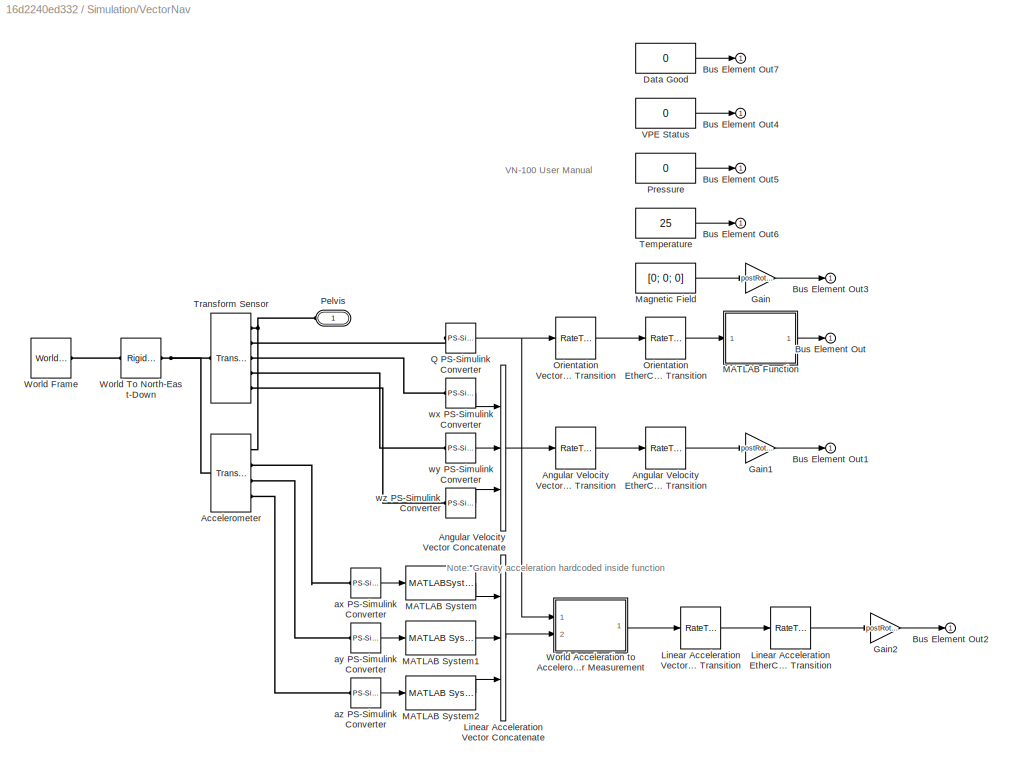
BLOCK [SubSystem] Simulation/VectorNav
  Ports = [0, 1, 0, 0, 0, 1]
  RequestExecContextInheritance = off
  Variant = off
BLOCK [Reference] Simulation/VectorNav/Accelerometer  REF=sm_lib/Frames and
Transforms/Transform
Sensor
  Ports = [0, 0, 0, 0, 0, 1, 4]
  SourceBlock = sm_lib/Frames and\nTransforms/Transform\nSensor
  SourceProductBaseCode = MS
  SourceProductName = Simscape Multibody
  SourceType = Transform\nSensor
BLOCK [RateTransition] Simulation/VectorNav/Angular Velocity EtherCAT Rate Transition
  Deterministic = off
  OutPortSampleTimeOpt = Inherit
BLOCK [Concatenate] Simulation/VectorNav/Angular Velocity Vector Concatenate
  NumInputs = 3
  Ports = [3, 1]
BLOCK [RateTransition] Simulation/VectorNav/Angular Velocity VectorNav Rate Transition
  Deterministic = off
  OutPortSampleTime = VectorNavModule.sampleTime
BLOCK [Outport] Simulation/VectorNav/Bus Element Out
  IconDisplay = Port number
BLOCK [Outport] Simulation/VectorNav/Bus Element Out1
  IconDisplay = Port number
BLOCK [Outport] Simulation/VectorNav/Bus Element Out2
  IconDisplay = Port number
BLOCK [Outport] Simulation/VectorNav/Bus Element Out3
  IconDisplay = Port number
BLOCK [Outport] Simulation/VectorNav/Bus Element Out4
  IconDisplay = Port number
BLOCK [Outport] Simulation/VectorNav/Bus Element Out5
  IconDisplay = Port number
BLOCK [Outport] Simulation/VectorNav/Bus Element Out6
  IconDisplay = Port number
BLOCK [Outport] Simulation/VectorNav/Bus Element Out7
  IconDisplay = Port number
BLOCK [Constant] Simulation/VectorNav/Data Good
  OutDataTypeStr = boolean
  Value = 0
BLOCK [Gain] Simulation/VectorNav/Gain
  Gain = postRotationMatrix
  Multiplication = Matrix(K*u)
  OutDataTypeStr = Inherit: Inherit via internal rule
  ParamDataTypeStr = Inherit: Inherit via internal rule
  SaturateOnIntegerOverflow = off
BLOCK [Gain] Simulation/VectorNav/Gain1
  Gain = postRotationMatrix
  Multiplication = Matrix(K*u)
  OutDataTypeStr = Inherit: Inherit via internal rule
  ParamDataTypeStr = Inherit: Inherit via internal rule
  SaturateOnIntegerOverflow = off
BLOCK [Gain] Simulation/VectorNav/Gain2
  Gain = postRotationMatrix
  Multiplication = Matrix(K*u)
  OutDataTypeStr = Inherit: Inherit via internal rule
  ParamDataTypeStr = Inherit: Inherit via internal rule
  SaturateOnIntegerOverflow = off
BLOCK [RateTransition] Simulation/VectorNav/Linear Acceleration EtherCAT Rate Transition
  Deterministic = off
  InitialCondition = [0; 0; 0]
  OutPortSampleTimeOpt = Inherit
BLOCK [Concatenate] Simulation/VectorNav/Linear Acceleration Vector Concatenate
  NumInputs = 3
  Ports = [3, 1]
BLOCK [RateTransition] Simulation/VectorNav/Linear Acceleration VectorNav Rate Transition
  Deterministic = off
  InitialCondition = [0; 0; 0]
  OutPortSampleTime = VectorNavModule.sampleTime
BLOCK [SubSystem] Simulation/VectorNav/MATLAB Function
  ErrorFcn = Stateflow.Translate.translate
  PermitHierarchicalResolution = ExplicitOnly
  Ports = [1, 1]
  RequestExecContextInheritance = off
  SFBlockType = MATLAB Function
  TreatAsAtomicUnit = on
  Variant = off
BLOCK [Demux] Simulation/VectorNav/MATLAB Function/ Demux 
  Outputs = 1
  Ports = [1, 1]
BLOCK [S-Function] Simulation/VectorNav/MATLAB Function/ SFunction 
  EnableBusSupport = off
  FunctionName = sf_sfun
  Parameters = postRotationMatrix,preRotationMatrix
  PortCounts = [1 2]
  Ports = [1, 2]
  SFcnIsStateOwnerBlock = off
  SFunctionDeploymentMode = off
  Tag = Stateflow S-Function ComponentLibrary 7
BLOCK [Terminator] Simulation/VectorNav/MATLAB Function/ Terminator 
BLOCK [Outport] Simulation/VectorNav/MATLAB Function/q
  IconDisplay = Port number
BLOCK [Inport] Simulation/VectorNav/MATLAB Function/q 
  IconDisplay = Port number
BLOCK [MATLABSystem] Simulation/VectorNav/MATLAB System
  MaskDisplay = disp('Filter');
  MaskType = FilterSystem
  Ports = [1, 1]
  SimulateUsing = Code generation
  System = FilterSystem
  a = [1 -0.8]
  b = 0.2
BLOCK [Reference] Simulation/VectorNav/MATLAB System1  REF=ComponentLibrary/Simulation/VectorNav/MATLAB System
  Ports = [1, 1]
  SourceBlock = ComponentLibrary/Simulation/VectorNav/MATLAB System
  SourceType = FilterSystem
BLOCK [Reference] Simulation/VectorNav/MATLAB System2  REF=ComponentLibrary/Simulation/VectorNav/MATLAB System
  Ports = [1, 1]
  SourceBlock = ComponentLibrary/Simulation/VectorNav/MATLAB System
  SourceType = FilterSystem
BLOCK [Constant] Simulation/VectorNav/Magnetic Field
  Value = [0; 0; 0]
BLOCK [RateTransition] Simulation/VectorNav/Orientation EtherCAT Rate Transition
  Deterministic = off
  InitialCondition = [0; 0; 0; 1]
  OutPortSampleTimeOpt = Inherit
BLOCK [RateTransition] Simulation/VectorNav/Orientation VectorNav Rate Transition
  Deterministic = off
  InitialCondition = [0; 0; 0; 1]
  OutPortSampleTime = VectorNavModule.sampleTime
BLOCK [PMIOPort] Simulation/VectorNav/Pelvis
  Port = 1
  Side = Left
BLOCK [Constant] Simulation/VectorNav/Pressure
  Value = 0
BLOCK [Reference] Simulation/VectorNav/Q PS-Simulink Converter  REF=nesl_utility/PS-Simulink
Converter
  Ports = [0, 1, 0, 0, 0, 1]
  SourceBlock = nesl_utility/PS-Simulink\nConverter
  SourceProductBaseCode = SS
  SourceProductName = Simscape
  SourceType = PS-Simulink\nConverter
BLOCK [Constant] Simulation/VectorNav/Temperature
  Value = 25
BLOCK [Reference] Simulation/VectorNav/Transform Sensor  REF=sm_lib/Frames and
Transforms/Transform
Sensor
  Ports = [0, 0, 0, 0, 0, 1, 5]
  SourceBlock = sm_lib/Frames and\nTransforms/Transform\nSensor
  SourceProductBaseCode = MS
  SourceProductName = Simscape Multibody
  SourceType = Transform\nSensor
BLOCK [Constant] Simulation/VectorNav/VPE Status
  OutDataTypeStr = uint16
  Value = 0
BLOCK [SubSystem] Simulation/VectorNav/World Acceleration to Accelerometer Measurement
  ErrorFcn = Stateflow.Translate.translate
  PermitHierarchicalResolution = ExplicitOnly
  Ports = [2, 1]
  RequestExecContextInheritance = off
  SFBlockType = MATLAB Function
  TreatAsAtomicUnit = on
  Variant = off
BLOCK [Demux] Simulation/VectorNav/World Acceleration to Accelerometer Measurement/ Demux 
  Outputs = 1
  Ports = [1, 1]
BLOCK [S-Function] Simulation/VectorNav/World Acceleration to Accelerometer Measurement/ SFunction 
  EnableBusSupport = off
  FunctionName = sf_sfun
  PortCounts = [2 2]
  Ports = [2, 2]
  SFcnIsStateOwnerBlock = off
  SFunctionDeploymentMode = off
  Tag = Stateflow S-Function ComponentLibrary 10
BLOCK [Terminator] Simulation/VectorNav/World Acceleration to Accelerometer Measurement/ Terminator 
BLOCK [Inport] Simulation/VectorNav/World Acceleration to Accelerometer Measurement/a
  IconDisplay = Port number
  Port = 2
BLOCK [Outport] Simulation/VectorNav/World Acceleration to Accelerometer Measurement/a1
  IconDisplay = Port number
BLOCK [Inport] Simulation/VectorNav/World Acceleration to Accelerometer Measurement/q
  IconDisplay = Port number
BLOCK [Reference] Simulation/VectorNav/World Frame  REF=sm_lib/Frames and
Transforms/World Frame
  Ports = [0, 0, 0, 0, 0, 0, 1]
  SourceBlock = sm_lib/Frames and\nTransforms/World Frame
  SourceProductBaseCode = MS
  SourceProductName = Simscape Multibody
  SourceType = World Frame
BLOCK [Reference] Simulation/VectorNav/World To North-East-Down  REF=sm_lib/Frames and
Transforms/Rigid
Transform
  Ports = [0, 0, 0, 0, 0, 1, 1]
  SourceBlock = sm_lib/Frames and\nTransforms/Rigid\nTransform
  SourceProductBaseCode = MS
  SourceProductName = Simscape Multibody
  SourceType = Rigid\nTransform
BLOCK [Reference] Simulation/VectorNav/ax PS-Simulink Converter  REF=nesl_utility/PS-Simulink
Converter
  Ports = [0, 1, 0, 0, 0, 1]
  SourceBlock = nesl_utility/PS-Simulink\nConverter
  SourceProductBaseCode = SS
  SourceProductName = Simscape
  SourceType = PS-Simulink\nConverter
BLOCK [Reference] Simulation/VectorNav/ay PS-Simulink Converter  REF=nesl_utility/PS-Simulink
Converter
  Ports = [0, 1, 0, 0, 0, 1]
  SourceBlock = nesl_utility/PS-Simulink\nConverter
  SourceProductBaseCode = SS
  SourceProductName = Simscape
  SourceType = PS-Simulink\nConverter
BLOCK [Reference] Simulation/VectorNav/az PS-Simulink Converter  REF=nesl_utility/PS-Simulink
Converter
  Ports = [0, 1, 0, 0, 0, 1]
  SourceBlock = nesl_utility/PS-Simulink\nConverter
  SourceProductBaseCode = SS
  SourceProductName = Simscape
  SourceType = PS-Simulink\nConverter
BLOCK [Reference] Simulation/VectorNav/wx PS-Simulink Converter  REF=nesl_utility/PS-Simulink
Converter
  Ports = [0, 1, 0, 0, 0, 1]
  SourceBlock = nesl_utility/PS-Simulink\nConverter
  SourceProductBaseCode = SS
  SourceProductName = Simscape
  SourceType = PS-Simulink\nConverter
BLOCK [Reference] Simulation/VectorNav/wy PS-Simulink Converter  REF=nesl_utility/PS-Simulink
Converter
  Ports = [0, 1, 0, 0, 0, 1]
  SourceBlock = nesl_utility/PS-Simulink\nConverter
  SourceProductBaseCode = SS
  SourceProductName = Simscape
  SourceType = PS-Simulink\nConverter
BLOCK [Reference] Simulation/VectorNav/wz PS-Simulink Converter  REF=nesl_utility/PS-Simulink
Converter
  Ports = [0, 1, 0, 0, 0, 1]
  SourceBlock = nesl_utility/PS-Simulink\nConverter
  SourceProductBaseCode = SS
  SourceProductName = Simscape
  SourceType = PS-Simulink\nConverter
BLOCK [SubSystem] Simulation/World
  Ports = [0, 0, 0, 0, 0, 0, 1]
  RequestExecContextInheritance = off
  Variant = off
BLOCK [Reference] Simulation/World/Cartesian Joint  REF=sm_lib/Joints/Cartesian
Joint
  Ports = [0, 0, 0, 0, 0, 1, 1]
  SourceBlock = sm_lib/Joints/Cartesian\nJoint
  SourceProductBaseCode = MS
  SourceProductName = Simscape Multibody
  SourceType = Cartesian\nJoint
BLOCK [Constant] Simulation/World/Constant
  Value = [0; 0; 0]
BLOCK [Reference] Simulation/World/External Force and Torque  REF=sm_lib/Forces and
Torques/External Force
and Torque
  Ports = [0, 0, 0, 0, 0, 1, 1]
  SourceBlock = sm_lib/Forces and\nTorques/External Force\nand Torque
  SourceProductBaseCode = MS
  SourceProductName = Simscape Multibody
  SourceType = External Force\nand Torque
BLOCK [Reference] Simulation/World/Fixed Camera  REF=sm_lib/Frames and
Transforms/Rigid
Transform
  Ports = [0, 0, 0, 0, 0, 1, 1]
  SourceBlock = sm_lib/Frames and\nTransforms/Rigid\nTransform
  SourceProductBaseCode = MS
  SourceProductName = Simscape Multibody
  SourceType = Rigid\nTransform
BLOCK [Reference] Simulation/World/Fixed Camera Reference Frame  REF=sm_lib/Frames and
Transforms/Reference
Frame
  Ports = [0, 0, 0, 0, 0, 0, 1]
  SourceBlock = sm_lib/Frames and\nTransforms/Reference\nFrame
  SourceProductBaseCode = MS
  SourceProductName = Simscape Multibody
  SourceType = Reference\nFrame
BLOCK [Reference] Simulation/World/Fixed Camera Target  REF=sm_lib/Frames and
Transforms/Rigid
Transform
  Ports = [0, 0, 0, 0, 0, 1, 1]
  SourceBlock = sm_lib/Frames and\nTransforms/Rigid\nTransform
  SourceProductBaseCode = MS
  SourceProductName = Simscape Multibody
  SourceType = Rigid\nTransform
BLOCK [Reference] Simulation/World/Mechanism Configuration  REF=sm_lib/Utilities/Mechanism
Configuration
  Ports = [0, 0, 0, 0, 0, 0, 1]
  SourceBlock = sm_lib/Utilities/Mechanism\nConfiguration
  SourceProductBaseCode = MS
  SourceProductName = Simscape Multibody
  SourceType = Mechanism\nConfiguration
BLOCK [PMIOPort] Simulation/World/Pelvis
  Port = 1
  Side = Right
BLOCK [Reference] Simulation/World/Simulink-PS Converter  REF=nesl_utility/Simulink-PS
Converter
  Ports = [1, 0, 0, 0, 0, 0, 1]
  SourceBlock = nesl_utility/Simulink-PS\nConverter
  SourceProductBaseCode = SS
  SourceProductName = Simscape
  SourceType = Simulink-PS\nConverter
BLOCK [Reference] Simulation/World/Solver Configuration  REF=nesl_utility/Solver
Configuration
  Ports = [0, 0, 0, 0, 0, 0, 1]
  SourceBlock = nesl_utility/Solver\nConfiguration
  SourceProductBaseCode = SS
  SourceProductName = Simscape
  SourceType = Solver\nConfiguration
BLOCK [Reference] Simulation/World/Spherical Joint  REF=sm_lib/Joints/Spherical
Joint
  Ports = [0, 0, 0, 0, 0, 1, 1]
  SourceBlock = sm_lib/Joints/Spherical\nJoint
  SourceProductBaseCode = MS
  SourceProductName = Simscape Multibody
  SourceType = Spherical\nJoint
BLOCK [Reference] Simulation/World/Tracking Camera  REF=sm_lib/Frames and
Transforms/Rigid
Transform
  Ports = [0, 0, 0, 0, 0, 1, 1]
  SourceBlock = sm_lib/Frames and\nTransforms/Rigid\nTransform
  SourceProductBaseCode = MS
  SourceProductName = Simscape Multibody
  SourceType = Rigid\nTransform
BLOCK [Reference] Simulation/World/Tracking Camera Reference Frame  REF=sm_lib/Frames and
Transforms/Reference
Frame
  Ports = [0, 0, 0, 0, 0, 0, 1]
  SourceBlock = sm_lib/Frames and\nTransforms/Reference\nFrame
  SourceProductBaseCode = MS
  SourceProductName = Simscape Multibody
  SourceType = Reference\nFrame
BLOCK [Reference] Simulation/World/Tracking Camera Target  REF=sm_lib/Frames and
Transforms/Rigid
Transform
  Ports = [0, 0, 0, 0, 0, 1, 1]
  SourceBlock = sm_lib/Frames and\nTransforms/Rigid\nTransform
  SourceProductBaseCode = MS
  SourceProductName = Simscape Multibody
  SourceType = Rigid\nTransform
BLOCK [Reference] Simulation/World/World Frame  REF=sm_lib/Frames and
Transforms/World Frame
  Ports = [0, 0, 0, 0, 0, 0, 1]
  SourceBlock = sm_lib/Frames and\nTransforms/World Frame
  SourceProductBaseCode = MS
  SourceProductName = Simscape Multibody
  SourceType = World Frame
ANNOTATION RealTime/Battery: TODO : Battery state of charge needs low-pass filter
ANNOTATION RealTime/Elmo Drive: TODO: Other useful parameters that can be sent down bus are homePosition, calibrationPosition, and gearRatio
ANNOTATION Simulation/VectorNav: VN-100 User Manual
ANNOTATION Simulation/VectorNav: Note: Gravity acceleration hardcoded inside function
NET RealTime/Battery/ADC to Amperage MATLAB Function:1 -> RealTime/Battery/Out Bus Element2:1, RealTime/Battery/State of Charge Estimator MATLAB Function:2
LINE RealTime/Battery/ADC to Celcius MATLAB Function:1 -> RealTime/Battery/Out Bus Element:1
NET RealTime/Battery/ADC to Voltage MATLAB Function:1 -> RealTime/Battery/Out Bus Element1:1, RealTime/Battery/State of Charge Estimator MATLAB Function:1
LINE RealTime/Battery/Battery Cell Voltage 1 PDO Receive:1 -> RealTime/Battery/Mux:1
LINE RealTime/Battery/Battery Cell Voltage 10 PDO Receive:1 -> RealTime/Battery/Mux:10
LINE RealTime/Battery/Battery Cell Voltage 11 PDO Receive:1 -> RealTime/Battery/Mux:11
LINE RealTime/Battery/Battery Cell Voltage 12 PDO Receive:1 -> RealTime/Battery/Mux:12
LINE RealTime/Battery/Battery Cell Voltage 2 PDO Receive:1 -> RealTime/Battery/Mux:2
LINE RealTime/Battery/Battery Cell Voltage 3 PDO Receive:1 -> RealTime/Battery/Mux:3
LINE RealTime/Battery/Battery Cell Voltage 4 PDO Receive:1 -> RealTime/Battery/Mux:4
LINE RealTime/Battery/Battery Cell Voltage 5 PDO Receive:1 -> RealTime/Battery/Mux:5
LINE RealTime/Battery/Battery Cell Voltage 6 PDO Receive:1 -> RealTime/Battery/Mux:6
LINE RealTime/Battery/Battery Cell Voltage 7 PDO Receive:1 -> RealTime/Battery/Mux:7
LINE RealTime/Battery/Battery Cell Voltage 8 PDO Receive:1 -> RealTime/Battery/Mux:8
LINE RealTime/Battery/Battery Cell Voltage 9 PDO Receive:1 -> RealTime/Battery/Mux:9
LINE RealTime/Battery/Battery Current PDO Receive:1 -> RealTime/Battery/ADC to Amperage MATLAB Function:1
LINE RealTime/Battery/Battery Data Good PDO Receive:1 -> RealTime/Battery/Out Bus Element3:1
LINE RealTime/Battery/Battery Temperature 1 PDO Receive:1 -> RealTime/Battery/Mux1:1
LINE RealTime/Battery/Battery Temperature 2 PDO Receive:1 -> RealTime/Battery/Mux1:2
LINE RealTime/Battery/Battery Temperature 3 PDO Receive:1 -> RealTime/Battery/Mux1:3
LINE RealTime/Battery/Battery Temperature 4 PDO Receive:1 -> RealTime/Battery/Mux1:4
LINE RealTime/Battery/Mux1:1 -> RealTime/Battery/ADC to Celcius MATLAB Function:1
LINE RealTime/Battery/Mux:1 -> RealTime/Battery/ADC to Voltage MATLAB Function:1
LINE RealTime/Battery/State of Charge Estimator MATLAB Function:1 -> RealTime/Battery/Out Bus Element4:1
LINE RealTime/Radio/Bus Element In:1 -> RealTime/Radio/Output Channel Data Type Conversion:1
LINE RealTime/Radio/Channel 1 PDO Receive:1 -> RealTime/Radio/Mux:1
LINE RealTime/Radio/Channel 10 PDO Receive:1 -> RealTime/Radio/Mux:10
LINE RealTime/Radio/Channel 11 PDO Receive:1 -> RealTime/Radio/Mux:11
LINE RealTime/Radio/Channel 12 PDO Receive:1 -> RealTime/Radio/Mux:12
LINE RealTime/Radio/Channel 13 PDO Receive:1 -> RealTime/Radio/Mux:13
LINE RealTime/Radio/Channel 14 PDO Receive:1 -> RealTime/Radio/Mux:14
LINE RealTime/Radio/Channel 15 PDO Receive:1 -> RealTime/Radio/Mux:15
LINE RealTime/Radio/Channel 16 PDO Receive:1 -> RealTime/Radio/Mux:16
LINE RealTime/Radio/Channel 2 PDO Receive:1 -> RealTime/Radio/Mux:2
LINE RealTime/Radio/Channel 3 PDO Receive:1 -> RealTime/Radio/Mux:3
LINE RealTime/Radio/Channel 4 PDO Receive:1 -> RealTime/Radio/Mux:4
LINE RealTime/Radio/Channel 5 PDO Receive:1 -> RealTime/Radio/Mux:5
LINE RealTime/Radio/Channel 6 PDO Receive:1 -> RealTime/Radio/Mux:6
LINE RealTime/Radio/Channel 7 PDO Receive:1 -> RealTime/Radio/Mux:7
LINE RealTime/Radio/Channel 8 PDO Receive:1 -> RealTime/Radio/Mux:8
LINE RealTime/Radio/Channel 9 PDO Receive:1 -> RealTime/Radio/Mux:9
LINE RealTime/Radio/Constant:1 -> RealTime/Radio/Divide:2
LINE RealTime/Radio/Demux:1 -> RealTime/Radio/Channel 1 PDO Transmit:1
LINE RealTime/Radio/Demux:10 -> RealTime/Radio/Channel 10 PDO Transmit:1
LINE RealTime/Radio/Demux:11 -> RealTime/Radio/Channel 11 PDO Transmit:1
LINE RealTime/Radio/Demux:12 -> RealTime/Radio/Channel 12 PDO Transmit:1
LINE RealTime/Radio/Demux:13 -> RealTime/Radio/Channel 13 PDO Transmit:1
LINE RealTime/Radio/Demux:14 -> RealTime/Radio/Channel 14 PDO Transmit:1
LINE RealTime/Radio/Demux:2 -> RealTime/Radio/Channel 2 PDO Transmit:1
LINE RealTime/Radio/Demux:3 -> RealTime/Radio/Channel 3 PDO Transmit:1
LINE RealTime/Radio/Demux:4 -> RealTime/Radio/Channel 4 PDO Transmit:1
LINE RealTime/Radio/Demux:5 -> RealTime/Radio/Channel 5 PDO Transmit:1
LINE RealTime/Radio/Demux:6 -> RealTime/Radio/Channel 6 PDO Transmit:1
LINE RealTime/Radio/Demux:7 -> RealTime/Radio/Channel 7 PDO Transmit:1
LINE RealTime/Radio/Demux:8 -> RealTime/Radio/Channel 8 PDO Transmit:1
LINE RealTime/Radio/Demux:9 -> RealTime/Radio/Channel 9 PDO Transmit:1
LINE RealTime/Radio/Divide:1 -> RealTime/Radio/Saturation:1
LINE RealTime/Radio/Input Channel Data Type Conversion:1 -> RealTime/Radio/Divide:1
LINE RealTime/Radio/Mux:1 -> RealTime/Radio/Input Channel Data Type Conversion:1
LINE RealTime/Radio/Output Channel Data Type Conversion:1 -> RealTime/Radio/Demux:1
LINE RealTime/Radio/Radio-Receiver Signal Good PDO Recieve:1 -> RealTime/Radio/Out Bus Element1:1
LINE RealTime/Radio/Receiver-Medulla Signal Good PDO Recieve:1 -> RealTime/Radio/Out Bus Element2:1
LINE RealTime/Radio/Saturation:1 -> RealTime/Radio/Out Bus Element:1
LINE RealTime/Target PC/CPU Temperature:1 -> RealTime/Target PC/Bus Element Out1:1
LINE RealTime/Target PC/EtherCAT Get Notifications:1 -> RealTime/Target PC/Bus Element Out4:1
LINE RealTime/Target PC/EtherCAT Init:1 -> RealTime/Target PC/Bus Element Out5:1
LINE RealTime/Target PC/Get Overload Counter:1 -> RealTime/Target PC/Bus Element Out2:1
LINE RealTime/Target PC/Task Execution Time :1 -> RealTime/Target PC/Bus Element Out3:1
LINE RealTime/VectorNav/Angular Velocity Data Type Conversion:1 -> RealTime/VectorNav/Gain1:1
LINE RealTime/VectorNav/Angular Velocity X PDO Receive:1 -> RealTime/VectorNav/Mux1:1
LINE RealTime/VectorNav/Angular Velocity Y PDO Receive:1 -> RealTime/VectorNav/Mux1:2
LINE RealTime/VectorNav/Angular Velocity Z PDO Receive:1 -> RealTime/VectorNav/Mux1:3
LINE RealTime/VectorNav/Data Good PDO Receive:1 -> RealTime/VectorNav/Bus Element Out7:1
LINE RealTime/VectorNav/Gain1:1 -> RealTime/VectorNav/Bus Element Out4:1
LINE RealTime/VectorNav/Gain2:1 -> RealTime/VectorNav/Bus Element Out3:1
LINE RealTime/VectorNav/Gain:1 -> RealTime/VectorNav/Bus Element Out5:1
LINE RealTime/VectorNav/Linear Acceleration Data Type Conversion:1 -> RealTime/VectorNav/Gain2:1
LINE RealTime/VectorNav/Linear Acceleration X PDO Receive:1 -> RealTime/VectorNav/Mux2:1
LINE RealTime/VectorNav/Linear Acceleration Y PDO Receive:1 -> RealTime/VectorNav/Mux2:2
LINE RealTime/VectorNav/Linear Acceleration Z PDO Receive:1 -> RealTime/VectorNav/Mux2:3
LINE RealTime/VectorNav/MATLAB Function:1 -> RealTime/VectorNav/Bus Element Out6:1
LINE RealTime/VectorNav/Magnetic Field Data Type Conversion:1 -> RealTime/VectorNav/Gain:1
LINE RealTime/VectorNav/Magnetic Field X PDO Receive:1 -> RealTime/VectorNav/Mux:1
LINE RealTime/VectorNav/Magnetic Field Y PDO Receive:1 -> RealTime/VectorNav/Mux:2
LINE RealTime/VectorNav/Magnetic Field Z PDO Receive:1 -> RealTime/VectorNav/Mux:3
LINE RealTime/VectorNav/Mux1:1 -> RealTime/VectorNav/Angular Velocity Data Type Conversion:1
LINE RealTime/VectorNav/Mux2:1 -> RealTime/VectorNav/Linear Acceleration Data Type Conversion:1
LINE RealTime/VectorNav/Mux3:1 -> RealTime/VectorNav/Orientation Data Type Conversion:1
LINE RealTime/VectorNav/Mux:1 -> RealTime/VectorNav/Magnetic Field Data Type Conversion:1
LINE RealTime/VectorNav/Orientation Data Type Conversion:1 -> RealTime/VectorNav/MATLAB Function:1
LINE RealTime/VectorNav/Orientation Qw PDO Receive:1 -> RealTime/VectorNav/Mux3:1
LINE RealTime/VectorNav/Orientation Qx PDO Receive:1 -> RealTime/VectorNav/Mux3:2
LINE RealTime/VectorNav/Orientation Qy PDO Receive:1 -> RealTime/VectorNav/Mux3:3
LINE RealTime/VectorNav/Orientation Qz PDO Receive:1 -> RealTime/VectorNav/Mux3:4
LINE RealTime/VectorNav/Pressure Data Type Conversion:1 -> RealTime/VectorNav/Bus Element Out1:1
LINE RealTime/VectorNav/Pressure PDO Receive:1 -> RealTime/VectorNav/Pressure Data Type Conversion:1
LINE RealTime/VectorNav/Temperature Data Type Conversion:1 -> RealTime/VectorNav/Bus Element Out2:1
LINE RealTime/VectorNav/Temperature PDO Receive:1 -> RealTime/VectorNav/Temperature Data Type Conversion:1
LINE RealTime/VectorNav/VPE Status PDO Receive:1 -> RealTime/VectorNav/Bus Element Out:1
LINE Simulation/Battery/Constant1:1 -> Simulation/Battery/Out Bus Element:1
LINE Simulation/Battery/Constant2:1 -> Simulation/Battery/Out Bus Element1:1
LINE Simulation/Battery/Constant3:1 -> Simulation/Battery/Out Bus Element2:1
LINE Simulation/Battery/Constant4:1 -> Simulation/Battery/Out Bus Element3:1
LINE Simulation/Battery/Constant:1 -> Simulation/Battery/Bus Element Out:1
LINE Simulation/Elmo Drive/Actual Torque Scaling:1 -> Simulation/Elmo Drive/Bus Element Out2:1
LINE Simulation/Elmo Drive/Bus Element In:1 -> Simulation/Elmo Drive/Target Torque Scaling:1
LINE Simulation/Elmo Drive/Constant1:1 -> Simulation/Elmo Drive/Bus Element Out1:1
LINE Simulation/Elmo Drive/Constant2:1 -> Simulation/Elmo Drive/Bus Element Out3:1
LINE Simulation/Elmo Drive/Constant3:1 -> Simulation/Elmo Drive/Bus Element Out5:1
LINE Simulation/Elmo Drive/Constant4:1 -> Simulation/Elmo Drive/Bus Element Out6:1
LINE Simulation/Elmo Drive/Constant5:1 -> Simulation/Elmo Drive/Bus Element Out7:1
NET Simulation/Elmo Drive/MATLAB Function:1 -> Simulation/Elmo Drive/Actual Torque Scaling:1, Simulation/Elmo Drive/Simulink-PS Converter:1
LINE Simulation/Elmo Drive/PS-Simulink Converter1:1 -> Simulation/Elmo Drive/MATLAB Function:1
LINE Simulation/Elmo Drive/PS-Simulink Converter2:1 -> Simulation/Elmo Drive/Rate Transition1:1
LINE Simulation/Elmo Drive/PS-Simulink Converter:1 -> Simulation/Elmo Drive/Rate Transition:1
LINE Simulation/Elmo Drive/Quantizer:1 -> Simulation/Elmo Drive/Bus Element Out:1
LINE Simulation/Elmo Drive/Rate Transition1:1 -> Simulation/Elmo Drive/Bus Element Out4:1
LINE Simulation/Elmo Drive/Rate Transition:1 -> Simulation/Elmo Drive/Quantizer:1
LINE Simulation/Elmo Drive/Target Torque Scaling:1 -> Simulation/Elmo Drive/MATLAB Function:2
LINE Simulation/Radio/Bus Element In:1 -> Simulation/Radio/Display:1
LINE Simulation/Radio/Constant1:1 -> Simulation/Radio/Out Bus Element:1
LINE Simulation/Radio/Constant2:1 -> Simulation/Radio/Out Bus Element1:1
LINE Simulation/Radio/Constant:1 -> Simulation/Radio/Bus Element Out:1
LINE Simulation/Target PC/Constant1:1 -> Simulation/Target PC/Bus Element Out1:1
LINE Simulation/Target PC/Constant2:1 -> Simulation/Target PC/Bus Element Out:1
LINE Simulation/Target PC/Constant3:1 -> Simulation/Target PC/Out Bus Element3:1
LINE Simulation/Target PC/Constant4:1 -> Simulation/Target PC/Out Bus Element:1
LINE Simulation/Target PC/Constant:1 -> Simulation/Target PC/Bus Element Out2:1
LINE Simulation/VectorNav/Angular Velocity EtherCAT Rate Transition:1 -> Simulation/VectorNav/Gain1:1
LINE Simulation/VectorNav/Angular Velocity Vector Concatenate:1 -> Simulation/VectorNav/Angular Velocity VectorNav Rate Transition:1
LINE Simulation/VectorNav/Angular Velocity VectorNav Rate Transition:1 -> Simulation/VectorNav/Angular Velocity EtherCAT Rate Transition:1
LINE Simulation/VectorNav/Data Good:1 -> Simulation/VectorNav/Bus Element Out7:1
LINE Simulation/VectorNav/Gain1:1 -> Simulation/VectorNav/Bus Element Out1:1
LINE Simulation/VectorNav/Gain2:1 -> Simulation/VectorNav/Bus Element Out2:1
LINE Simulation/VectorNav/Gain:1 -> Simulation/VectorNav/Bus Element Out3:1
LINE Simulation/VectorNav/Linear Acceleration EtherCAT Rate Transition:1 -> Simulation/VectorNav/Gain2:1
LINE Simulation/VectorNav/Linear Acceleration Vector Concatenate:1 -> Simulation/VectorNav/World Acceleration to Accelerometer Measurement:2
LINE Simulation/VectorNav/Linear Acceleration VectorNav Rate Transition:1 -> Simulation/VectorNav/Linear Acceleration EtherCAT Rate Transition:1
LINE Simulation/VectorNav/MATLAB Function:1 -> Simulation/VectorNav/Bus Element Out:1
LINE Simulation/VectorNav/MATLAB System1:1 -> Simulation/VectorNav/Linear Acceleration Vector Concatenate:2
LINE Simulation/VectorNav/MATLAB System2:1 -> Simulation/VectorNav/Linear Acceleration Vector Concatenate:3
LINE Simulation/VectorNav/MATLAB System:1 -> Simulation/VectorNav/Linear Acceleration Vector Concatenate:1
LINE Simulation/VectorNav/Magnetic Field:1 -> Simulation/VectorNav/Gain:1
LINE Simulation/VectorNav/Orientation EtherCAT Rate Transition:1 -> Simulation/VectorNav/MATLAB Function:1
LINE Simulation/VectorNav/Orientation VectorNav Rate Transition:1 -> Simulation/VectorNav/Orientation EtherCAT Rate Transition:1
LINE Simulation/VectorNav/Pressure:1 -> Simulation/VectorNav/Bus Element Out5:1
NET Simulation/VectorNav/Q PS-Simulink Converter:1 -> Simulation/VectorNav/Orientation VectorNav Rate Transition:1, Simulation/VectorNav/World Acceleration to Accelerometer Measurement:1
LINE Simulation/VectorNav/Temperature:1 -> Simulation/VectorNav/Bus Element Out6:1
LINE Simulation/VectorNav/VPE Status:1 -> Simulation/VectorNav/Bus Element Out4:1
LINE Simulation/VectorNav/World Acceleration to Accelerometer Measurement:1 -> Simulation/VectorNav/Linear Acceleration VectorNav Rate Transition:1
LINE Simulation/VectorNav/ax PS-Simulink Converter:1 -> Simulation/VectorNav/MATLAB System:1
LINE Simulation/VectorNav/ay PS-Simulink Converter:1 -> Simulation/VectorNav/MATLAB System1:1
LINE Simulation/VectorNav/az PS-Simulink Converter:1 -> Simulation/VectorNav/MATLAB System2:1
LINE Simulation/VectorNav/wx PS-Simulink Converter:1 -> Simulation/VectorNav/Angular Velocity Vector Concatenate:1
LINE Simulation/VectorNav/wy PS-Simulink Converter:1 -> Simulation/VectorNav/Angular Velocity Vector Concatenate:2
LINE Simulation/VectorNav/wz PS-Simulink Converter:1 -> Simulation/VectorNav/Angular Velocity Vector Concatenate:3
LINE Simulation/World/Constant:1 -> Simulation/World/Simulink-PS Converter:1
PNET net1: Simulation/Elmo Drive/Base:RConn1 -- Simulation/Elmo Drive/Gear Constraint Offset:LConn1 -- Simulation/Elmo Drive/Input Revolute Joint:LConn1
PNET net2: Simulation/Elmo Drive/Follower:RConn1 -- Simulation/Elmo Drive/Gear Constraint:RConn1 -- Simulation/Elmo Drive/Output Revolute Joint:RConn1
PLINE Simulation/Elmo Drive/Gear Constraint Offset:RConn1 -- Simulation/Elmo Drive/Output Revolute Joint:LConn1
PNET net3: Simulation/Elmo Drive/Gear Constraint:LConn1 -- Simulation/Elmo Drive/Input Revolute Joint:RConn1 -- Simulation/Elmo Drive/Rotor Solid:RConn1
PLINE Simulation/Elmo Drive/Input Revolute Joint:LConn2 -- Simulation/Elmo Drive/Simulink-PS Converter:RConn1
PLINE Simulation/Elmo Drive/Input Revolute Joint:RConn2 -- Simulation/Elmo Drive/PS-Simulink Converter1:LConn1
PLINE Simulation/Elmo Drive/Output Revolute Joint:RConn2 -- Simulation/Elmo Drive/PS-Simulink Converter:LConn1
PLINE Simulation/Elmo Drive/Output Revolute Joint:RConn3 -- Simulation/Elmo Drive/PS-Simulink Converter2:LConn1
PNET net4: Simulation/VectorNav/Accelerometer:LConn1 -- Simulation/VectorNav/Transform Sensor:LConn1 -- Simulation/VectorNav/World To North-East-Down:RConn1
PNET net5: Simulation/VectorNav/Accelerometer:RConn1 -- Simulation/VectorNav/Pelvis:RConn1 -- Simulation/VectorNav/Transform Sensor:RConn1
PLINE Simulation/VectorNav/Accelerometer:RConn2 -- Simulation/VectorNav/ax PS-Simulink Converter:LConn1
PLINE Simulation/VectorNav/Accelerometer:RConn3 -- Simulation/VectorNav/ay PS-Simulink Converter:LConn1
PLINE Simulation/VectorNav/Accelerometer:RConn4 -- Simulation/VectorNav/az PS-Simulink Converter:LConn1
PLINE Simulation/VectorNav/Q PS-Simulink Converter:LConn1 -- Simulation/VectorNav/Transform Sensor:RConn2
PLINE Simulation/VectorNav/Transform Sensor:RConn3 -- Simulation/VectorNav/wx PS-Simulink Converter:LConn1
PLINE Simulation/VectorNav/Transform Sensor:RConn4 -- Simulation/VectorNav/wy PS-Simulink Converter:LConn1
PLINE Simulation/VectorNav/Transform Sensor:RConn5 -- Simulation/VectorNav/wz PS-Simulink Converter:LConn1
PLINE Simulation/VectorNav/World Frame:RConn1 -- Simulation/VectorNav/World To North-East-Down:LConn1
PNET net6: Simulation/World/Cartesian Joint:LConn1 -- Simulation/World/Fixed Camera Target:LConn1 -- Simulation/World/Mechanism Configuration:RConn1 -- Simulation/World/Solver Configuration:RConn1 -- Simulation/World/World Frame:RConn1
PNET net7: Simulation/World/Cartesian Joint:RConn1 -- Simulation/World/Spherical Joint:LConn1 -- Simulation/World/Tracking Camera Target:LConn1
PLINE Simulation/World/External Force and Torque:LConn1 -- Simulation/World/Simulink-PS Converter:RConn1
PNET net8: Simulation/World/External Force and Torque:RConn1 -- Simulation/World/Pelvis:RConn1 -- Simulation/World/Spherical Joint:RConn1
PLINE Simulation/World/Fixed Camera Reference Frame:RConn1 -- Simulation/World/Fixed Camera:RConn1
PLINE Simulation/World/Fixed Camera Target:RConn1 -- Simulation/World/Fixed Camera:LConn1
PLINE Simulation/World/Tracking Camera Reference Frame:RConn1 -- Simulation/World/Tracking Camera:RConn1
PLINE Simulation/World/Tracking Camera Target:RConn1 -- Simulation/World/Tracking Camera:LConn1
note: NET lines group one-source signal fan-out (src -> all destinations, sorted); 1:1 wires keep LINE; PNET lines group multi-terminal physical nets as a canonical sorted terminal list (undirected conserving connections); 2-terminal nets keep the pairwise PLINE form
CHART RealTime/Battery/State of Charge Estimator
MATLAB Function states=1 transitions=1
  STATE_LABEL 'eML_blk_kernel()'
  STATE_LABEL 'SCRIPT:\nfunction stateOfCharge = stateOfChargeEstimator(voltage, current)\n  stateOfCharge = BatteryModule.stateOfChargeEstimator(voltage, current);\nend % stateOfChargeEstimator'
CHART Simulation/Elmo Drive/MATLAB Function states=1 transitions=1
  STATE_LABEL 'eML_blk_kernel()'
  STATE_LABEL 'SCRIPT:\nfunction torque = fcn(speed, torque, peakTorque, peakSpeed) %#codegen\n\n  % Cap the velocity at the specified limits to avoid extrapolation\n  speed = median([-peakSpeed, speed, peakSpeed]);\n\n  % Linear interpolation of speed-torque curve\n  torqueLimit = interp1(...\n    [0, 0.5*peakSpeed, peakSpeed], ...\n    [peakTorque, peakTorque, 0], ...\n    abs(speed));\n\n  % Cap the torque command at the...<+82ch>'
CHART RealTime/Battery/ADC to Amperage
MATLAB Function states=1 transitions=1
  STATE_LABEL 'eML_blk_kernel()'
  STATE_LABEL 'SCRIPT:\nfunction A = adcToAmperage(adcValue) %#codegen\n  A = BatteryModule.adcToAmperage(adcValue);\nend % adcToAmperage\n'
CHART RealTime/Battery/ADC to Celcius
MATLAB Function states=1 transitions=1
  STATE_LABEL 'eML_blk_kernel()'
  STATE_LABEL 'SCRIPT:\nfunction C = adcToCelcius(adcValue) %#codegen\n  C = BatteryModule.adcToCelcius(adcValue);\nend % adcToCelcius'
CHART RealTime/Elmo Drive/Elmo State Machine
MATLAB Function states=1 transitions=1
  STATE_LABEL 'eML_blk_kernel()'
  STATE_LABEL 'SCRIPT:\nfunction controlWord = stateMachine(statusWord) %#codegen\n  controlWord = ElmoModule.stateMachine(statusWord);\nend % stateMachine'
CHART RealTime/Battery/ADC to Voltage
MATLAB Function states=1 transitions=1
  STATE_LABEL 'eML_blk_kernel()'
  STATE_LABEL 'SCRIPT:\nfunction V = adcToVoltage(adcValue) %#codegen\n  V = BatteryModule.adcToVoltage(adcValue);\nend % adcToVoltage\n'
CHART Simulation/VectorNav/MATLAB Function states=1 transitions=1
  STATE_LABEL 'eML_blk_kernel()'
  STATE_LABEL 'SCRIPT:\nfunction q = fcn(q, preRotationMatrix, postRotationMatrix)\n  % Construct constant rotation matrix objects\n  R0 = coder.const(Rotation3d(preRotationMatrix));\n  R2 = coder.const(Rotation3d(postRotationMatrix));\n  \n  % Convert rotation matrices into constant quaternion objects\n  Q0 = coder.const(R0.getQuaternion);\n  Q2 = coder.const(R2.getQuaternion);\n  \n  % Apply pre and post rotations\n  Q1 ...<+94ch>'
CHART RealTime/VectorNav/MATLAB Function states=1 transitions=1
  STATE_LABEL 'eML_blk_kernel()'
  STATE_LABEL 'SCRIPT:\nfunction q = fcn(q, preRotationMatrix, postRotationMatrix)\n  % Construct constant rotation matrix objects\n  R0 = coder.const(Rotation3d(preRotationMatrix));\n  R2 = coder.const(Rotation3d(postRotationMatrix));\n  \n  % Convert rotation matrices into constant quaternion objects\n  Q0 = coder.const(R0.getQuaternion);\n  Q2 = coder.const(R2.getQuaternion);\n  \n  % Apply pre and post rotations\n  Q1 ...<+96ch>'
CHART RealTime/Elmo Drive/MATLAB Function states=1 transitions=1
  STATE_LABEL 'eML_blk_kernel()'
  STATE_LABEL 'SCRIPT:\nfunction torqueOut = torqueScaling(torqueIn, torqueLimit)\n  %TORQUESCALING Normalize torque as required by Elmo drive\n  %\n  % Description:\n  %   This function scales the commanded torque by the torqueScaling factor and\n  %   converts it to an int16. The Elmo takes the int16 signal and then rescales\n  %   it so that 1000 is equal to its internal torque limit. Because we pull\n  %   that inte...<+308ch>'
CHART Simulation/VectorNav/World Acceleration to 
Accelerometer Measurement states=1 transitions=1
  STATE_LABEL 'eML_blk_kernel()'
  STATE_LABEL "SCRIPT:\nfunction a1 = fcn(q, a)\n  % Construct quaternion object\n  Q = Quaternion(q);\n  \n  % Add world gravity acceleration to body acceleration\n  a1 = Q.getRotation.getValue'*(a + [0; 0; -9.806]);\nend % fcn\n"
